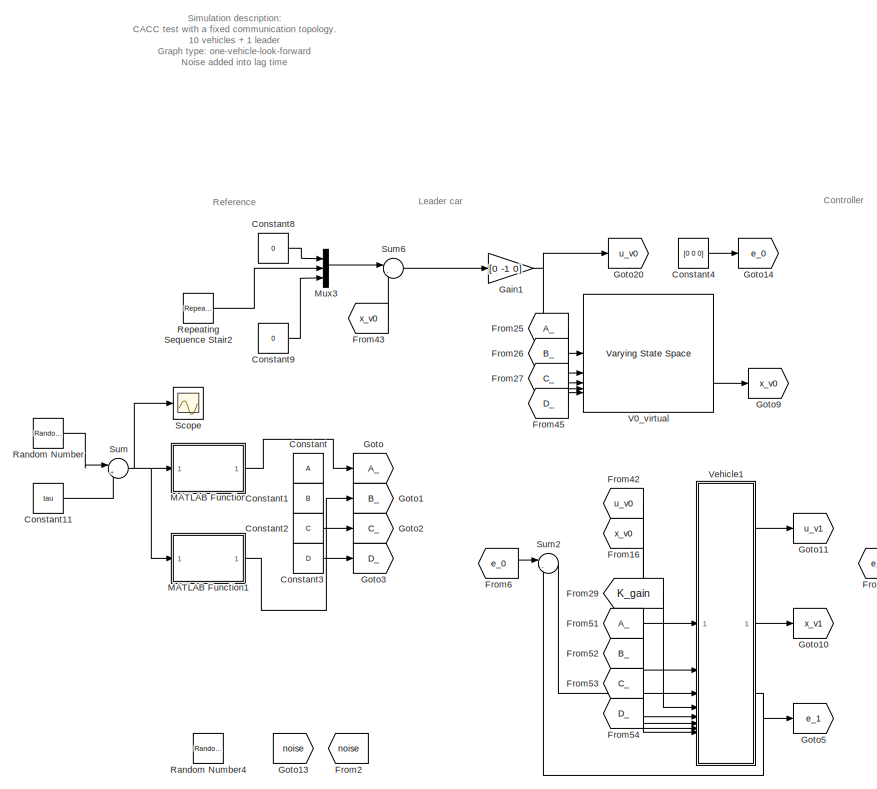
[diagram: root canvas - part 1/3, middle left region]
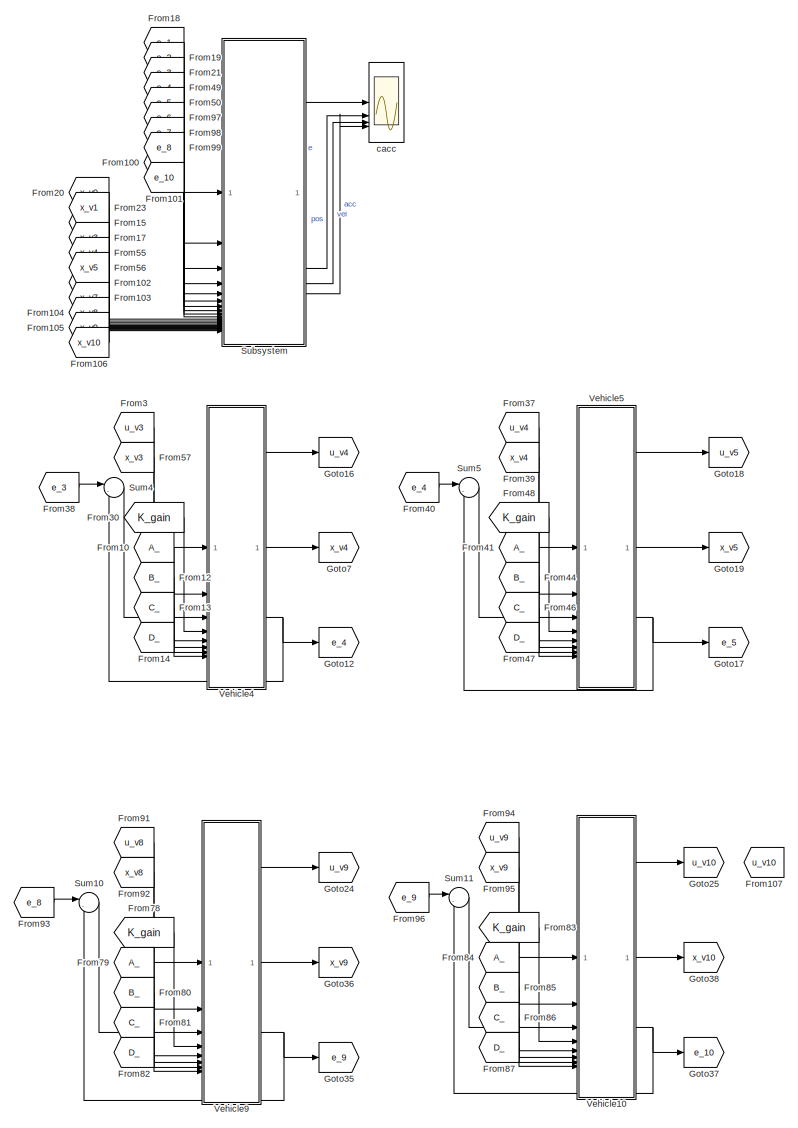
[diagram: root canvas - part 2/3, right side, full height]
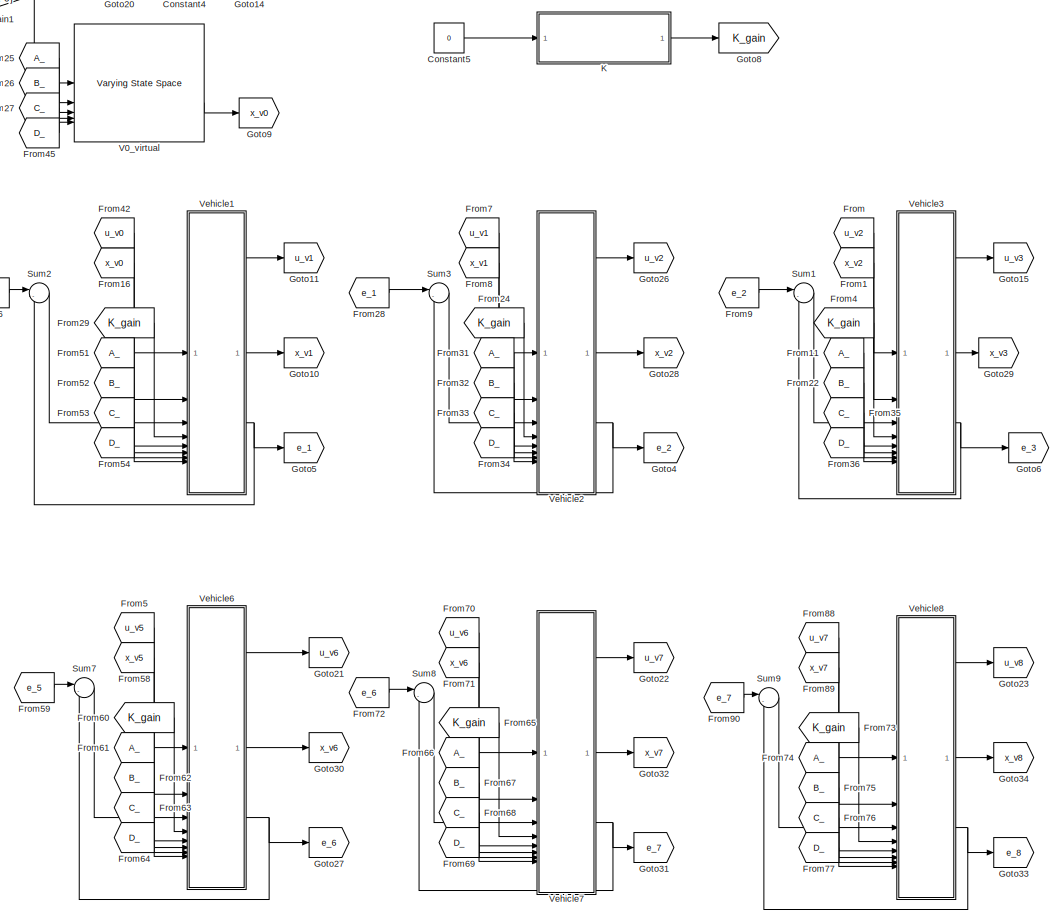
[diagram: root canvas - part 3/3, center side, full height]
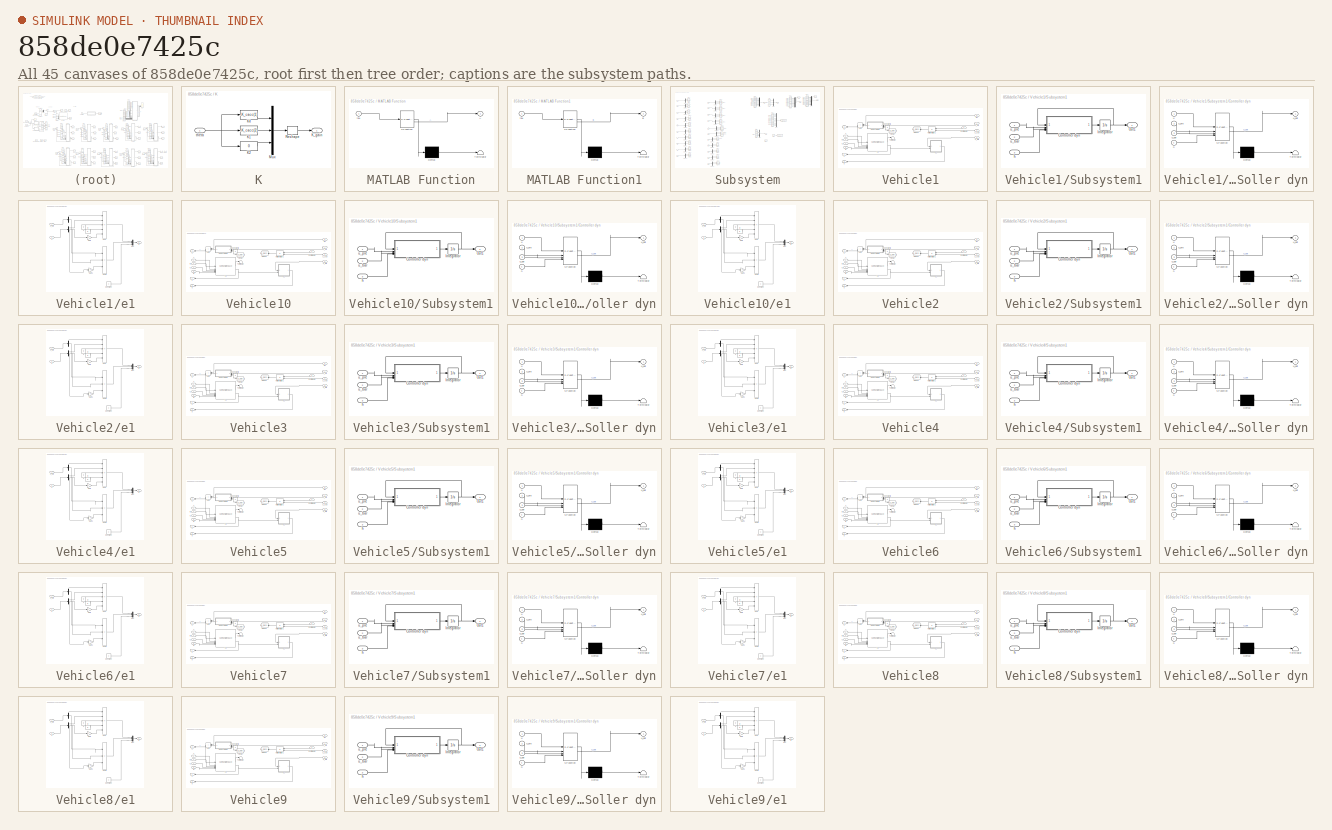
[diagram: thumbnail index - all 45 canvases of the model, root first then tree order]
MODEL slx_858de0e7425c
KIND model
CONFIG AbsTol = auto
CONFIG EnableMultiTasking = off
CONFIG FixedStep = auto
CONFIG MaxStep = auto
CONFIG MinStep = auto
CONFIG RelTol = 1e-3
CONFIG SampleTimeConstraint = Unconstrained
CONFIG SolverName = VariableStepAuto
CONFIG StartTime = 0.0
CONFIG StopTime = 80
BLOCK [Constant] Constant
  Value = A
BLOCK [Constant] Constant1
  Value = B
BLOCK [Constant] Constant11
  Value = tau
BLOCK [Constant] Constant2
  Value = C
BLOCK [Constant] Constant3
  Value = D
BLOCK [Constant] Constant4
  Value = [0 0 0]
BLOCK [Constant] Constant5
  Value = 0
BLOCK [Constant] Constant8
  Value = 0
BLOCK [Constant] Constant9
  Value = 0
BLOCK [From] From
  GotoTag = u_v2
BLOCK [From] From1
  GotoTag = x_v2
BLOCK [From] From10
  GotoTag = A_
BLOCK [From] From100
  GotoTag = e_9
BLOCK [From] From101
  GotoTag = e_10
BLOCK [From] From102
  GotoTag = x_v6
BLOCK [From] From103
  GotoTag = x_v7
BLOCK [From] From104
  GotoTag = x_v8
BLOCK [From] From105
  GotoTag = x_v9
BLOCK [From] From106
  GotoTag = x_v10
BLOCK [From] From107
  GotoTag = u_v10
BLOCK [From] From11
  GotoTag = A_
BLOCK [From] From12
  GotoTag = B_
BLOCK [From] From13
  GotoTag = C_
BLOCK [From] From14
  GotoTag = D_
BLOCK [From] From15
  GotoTag = x_v2
BLOCK [From] From16
  GotoTag = x_v0
BLOCK [From] From17
  GotoTag = x_v3
BLOCK [From] From18
  GotoTag = e_1
BLOCK [From] From19
  GotoTag = e_2
BLOCK [From] From2
  GotoTag = noise
BLOCK [From] From20
  GotoTag = x_v0
BLOCK [From] From21
  GotoTag = e_3
BLOCK [From] From22
  GotoTag = B_
BLOCK [From] From23
  GotoTag = x_v1
BLOCK [From] From24
  GotoTag = K_gain
BLOCK [From] From25
  GotoTag = A_
BLOCK [From] From26
  GotoTag = B_
BLOCK [From] From27
  GotoTag = C_
BLOCK [From] From28
  GotoTag = e_1
BLOCK [From] From29
  GotoTag = K_gain
BLOCK [From] From3
  GotoTag = u_v3
BLOCK [From] From30
  GotoTag = K_gain
BLOCK [From] From31
  GotoTag = A_
BLOCK [From] From32
  GotoTag = B_
BLOCK [From] From33
  GotoTag = C_
BLOCK [From] From34
  GotoTag = D_
BLOCK [From] From35
  GotoTag = C_
BLOCK [From] From36
  GotoTag = D_
BLOCK [From] From37
  GotoTag = u_v4
BLOCK [From] From38
  GotoTag = e_3
BLOCK [From] From39
  GotoTag = x_v4
BLOCK [From] From4
  GotoTag = K_gain
BLOCK [From] From40
  GotoTag = e_4
BLOCK [From] From41
  GotoTag = A_
BLOCK [From] From42
  GotoTag = u_v0
  NameLocation = top
BLOCK [From] From43
  GotoTag = x_v0
BLOCK [From] From44
  GotoTag = B_
BLOCK [From] From45
  GotoTag = D_
BLOCK [From] From46
  GotoTag = C_
BLOCK [From] From47
  GotoTag = D_
BLOCK [From] From48
  GotoTag = K_gain
BLOCK [From] From49
  GotoTag = e_4
BLOCK [From] From5
  GotoTag = u_v5
BLOCK [From] From50
  GotoTag = e_5
BLOCK [From] From51
  GotoTag = A_
BLOCK [From] From52
  GotoTag = B_
BLOCK [From] From53
  GotoTag = C_
BLOCK [From] From54
  GotoTag = D_
BLOCK [From] From55
  GotoTag = x_v4
BLOCK [From] From56
  GotoTag = x_v5
BLOCK [From] From57
  GotoTag = x_v3
BLOCK [From] From58
  GotoTag = x_v5
BLOCK [From] From59
  GotoTag = e_5
BLOCK [From] From6
  GotoTag = e_0
BLOCK [From] From60
  GotoTag = K_gain
BLOCK [From] From61
  GotoTag = A_
BLOCK [From] From62
  GotoTag = B_
BLOCK [From] From63
  GotoTag = C_
BLOCK [From] From64
  GotoTag = D_
BLOCK [From] From65
  GotoTag = K_gain
BLOCK [From] From66
  GotoTag = A_
BLOCK [From] From67
  GotoTag = B_
BLOCK [From] From68
  GotoTag = C_
BLOCK [From] From69
  GotoTag = D_
BLOCK [From] From7
  GotoTag = u_v1
BLOCK [From] From70
  GotoTag = u_v6
BLOCK [From] From71
  GotoTag = x_v6
BLOCK [From] From72
  GotoTag = e_6
BLOCK [From] From73
  GotoTag = K_gain
BLOCK [From] From74
  GotoTag = A_
BLOCK [From] From75
  GotoTag = B_
BLOCK [From] From76
  GotoTag = C_
BLOCK [From] From77
  GotoTag = D_
BLOCK [From] From78
  GotoTag = K_gain
BLOCK [From] From79
  GotoTag = A_
BLOCK [From] From8
  GotoTag = x_v1
BLOCK [From] From80
  GotoTag = B_
BLOCK [From] From81
  GotoTag = C_
BLOCK [From] From82
  GotoTag = D_
BLOCK [From] From83
  GotoTag = K_gain
BLOCK [From] From84
  GotoTag = A_
BLOCK [From] From85
  GotoTag = B_
BLOCK [From] From86
  GotoTag = C_
BLOCK [From] From87
  GotoTag = D_
BLOCK [From] From88
  GotoTag = u_v7
BLOCK [From] From89
  GotoTag = x_v7
BLOCK [From] From9
  GotoTag = e_2
BLOCK [From] From90
  GotoTag = e_7
BLOCK [From] From91
  GotoTag = u_v8
BLOCK [From] From92
  GotoTag = x_v8
BLOCK [From] From93
  GotoTag = e_8
BLOCK [From] From94
  GotoTag = u_v9
BLOCK [From] From95
  GotoTag = x_v9
BLOCK [From] From96
  GotoTag = e_9
BLOCK [From] From97
  GotoTag = e_6
BLOCK [From] From98
  GotoTag = e_7
BLOCK [From] From99
  GotoTag = e_8
BLOCK [Gain] Gain1
  Gain = [0 -1 0]
  Multiplication = Matrix(K*u) (u vector)
BLOCK [Goto] Goto
  GotoTag = A_
BLOCK [Goto] Goto1
  GotoTag = B_
BLOCK [Goto] Goto10
  GotoTag = x_v1
BLOCK [Goto] Goto11
  GotoTag = u_v1
BLOCK [Goto] Goto12
  GotoTag = e_4
  NameLocation = top
BLOCK [Goto] Goto13
  GotoTag = noise
BLOCK [Goto] Goto14
  GotoTag = e_0
  NameLocation = top
BLOCK [Goto] Goto15
  GotoTag = u_v3
BLOCK [Goto] Goto16
  GotoTag = u_v4
BLOCK [Goto] Goto17
  GotoTag = e_5
  NameLocation = top
BLOCK [Goto] Goto18
  GotoTag = u_v5
BLOCK [Goto] Goto19
  GotoTag = x_v5
BLOCK [Goto] Goto2
  GotoTag = C_
BLOCK [Goto] Goto20
  GotoTag = u_v0
BLOCK [Goto] Goto21
  GotoTag = u_v6
BLOCK [Goto] Goto22
  GotoTag = u_v7
BLOCK [Goto] Goto23
  GotoTag = u_v8
BLOCK [Goto] Goto24
  GotoTag = u_v9
BLOCK [Goto] Goto25
  GotoTag = u_v10
BLOCK [Goto] Goto26
  GotoTag = u_v2
BLOCK [Goto] Goto27
  GotoTag = e_6
  NameLocation = top
BLOCK [Goto] Goto28
  GotoTag = x_v2
BLOCK [Goto] Goto29
  GotoTag = x_v3
BLOCK [Goto] Goto3
  GotoTag = D_
BLOCK [Goto] Goto30
  GotoTag = x_v6
BLOCK [Goto] Goto31
  GotoTag = e_7
  NameLocation = top
BLOCK [Goto] Goto32
  GotoTag = x_v7
BLOCK [Goto] Goto33
  GotoTag = e_8
  NameLocation = top
BLOCK [Goto] Goto34
  GotoTag = x_v8
BLOCK [Goto] Goto35
  GotoTag = e_9
  NameLocation = top
BLOCK [Goto] Goto36
  GotoTag = x_v9
BLOCK [Goto] Goto37
  GotoTag = e_10
  NameLocation = top
BLOCK [Goto] Goto38
  GotoTag = x_v10
BLOCK [Goto] Goto4
  GotoTag = e_2
  NameLocation = top
BLOCK [Goto] Goto5
  GotoTag = e_1
  NameLocation = top
BLOCK [Goto] Goto6
  GotoTag = e_3
  NameLocation = top
BLOCK [Goto] Goto7
  GotoTag = x_v4
BLOCK [Goto] Goto8
  GotoTag = K_gain
BLOCK [Goto] Goto9
  GotoTag = x_v0
BLOCK [SubSystem] K
BLOCK [Fcn] K/K1
  Expr = -K_cacc(2)
BLOCK [Fcn] K/K2
  Expr = 0
BLOCK [Fcn] K/K4
  Expr = -K_cacc(1)
BLOCK [Outport] K/K_gain
BLOCK [Mux] K/Mux
  DisplayOption = bar
  Inputs = 3
BLOCK [Reshape] K/Reshape
  OutputDimensionality = Customize
  OutputDimensions = [1,3]
BLOCK [Inport] K/theta
BLOCK [SubSystem] MATLAB Function
  ErrorFcn = Stateflow.Translate.translate
  LibrarySourceBlock = simulink/User-Defined\nFunctions/MATLAB Function
  PermitHierarchicalResolution = ExplicitOnly
  SFBlockType = MATLAB Function
  TreatAsAtomicUnit = on
BLOCK [Demux] MATLAB Function/ Demux 
  Outputs = 1
BLOCK [S-Function] MATLAB Function/ SFunction 
  EnableBusSupport = on
  FunctionName = sf_sfun
  PortCounts = [1 2]
  SFcnIsStateOwnerBlock = off
  SFunctionDeploymentMode = off
  Tag = Stateflow S-Function 2
BLOCK [Terminator] MATLAB Function/ Terminator 
BLOCK [Outport] MATLAB Function/A
BLOCK [Inport] MATLAB Function/tau
BLOCK [SubSystem] MATLAB Function1
  ErrorFcn = Stateflow.Translate.translate
  LibrarySourceBlock = simulink/User-Defined\nFunctions/MATLAB Function
  PermitHierarchicalResolution = ExplicitOnly
  SFBlockType = MATLAB Function
  TreatAsAtomicUnit = on
BLOCK [Demux] MATLAB Function1/ Demux 
  Outputs = 1
BLOCK [S-Function] MATLAB Function1/ SFunction 
  EnableBusSupport = on
  FunctionName = sf_sfun
  PortCounts = [1 2]
  SFcnIsStateOwnerBlock = off
  SFunctionDeploymentMode = off
  Tag = Stateflow S-Function 4
BLOCK [Terminator] MATLAB Function1/ Terminator 
BLOCK [Outport] MATLAB Function1/B
BLOCK [Inport] MATLAB Function1/tau
BLOCK [Mux] Mux3
  DisplayOption = bar
  Inputs = 3
BLOCK [RandomNumber] Random Number
  SampleTime = 0.1
  Variance = 0.0001
BLOCK [RandomNumber] Random Number4
  SampleTime = 0.1
  Variance = 0.1
BLOCK [Reference] Repeating Sequence Stair2  REF=simulink/Sources/Repeating
Sequence
Stair
  SourceBlock = simulink/Sources/Repeating\nSequence\nStair
  SourceType = Repeating Sequence Stair
BLOCK [Scope] Scope
  Floating = off
  NumInputPorts = 1
  ScopeSpecificationString = Simulink.scopes.TimeScopeBlockCfg('CurrentConfiguration', extmgr.ConfigurationSet(extmgr.Configuration('Core','General UI',true),extmgr.Configuration('Core','Source UI',true),extmgr.Configuration('Sources','WiredSimulink',true,'DataLoggingVariableName','ScopeData1'),extmgr.Configuration('Visuals','Time Domain',true,'SerializedDisplays',{struct('MinYLimReal','0.06367','MaxYLimReal','0.13967','YLabe...<+1389ch>
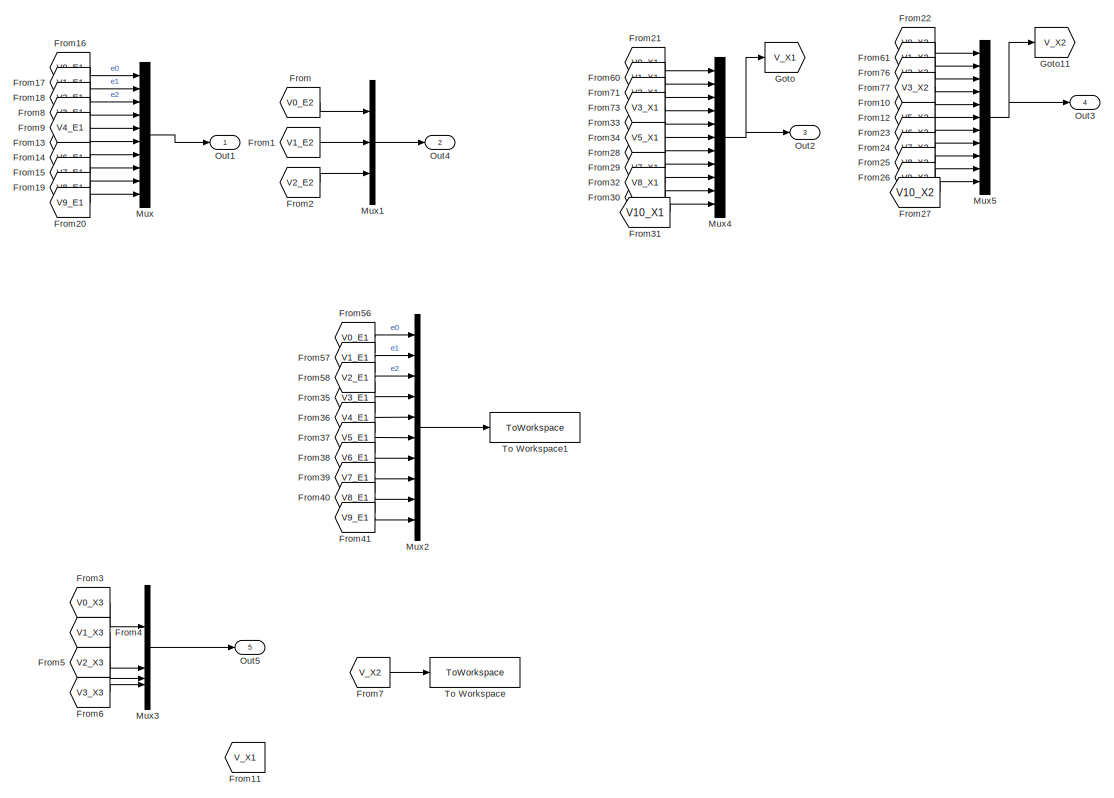
[diagram: Subsystem - part 1/2, middle right region]
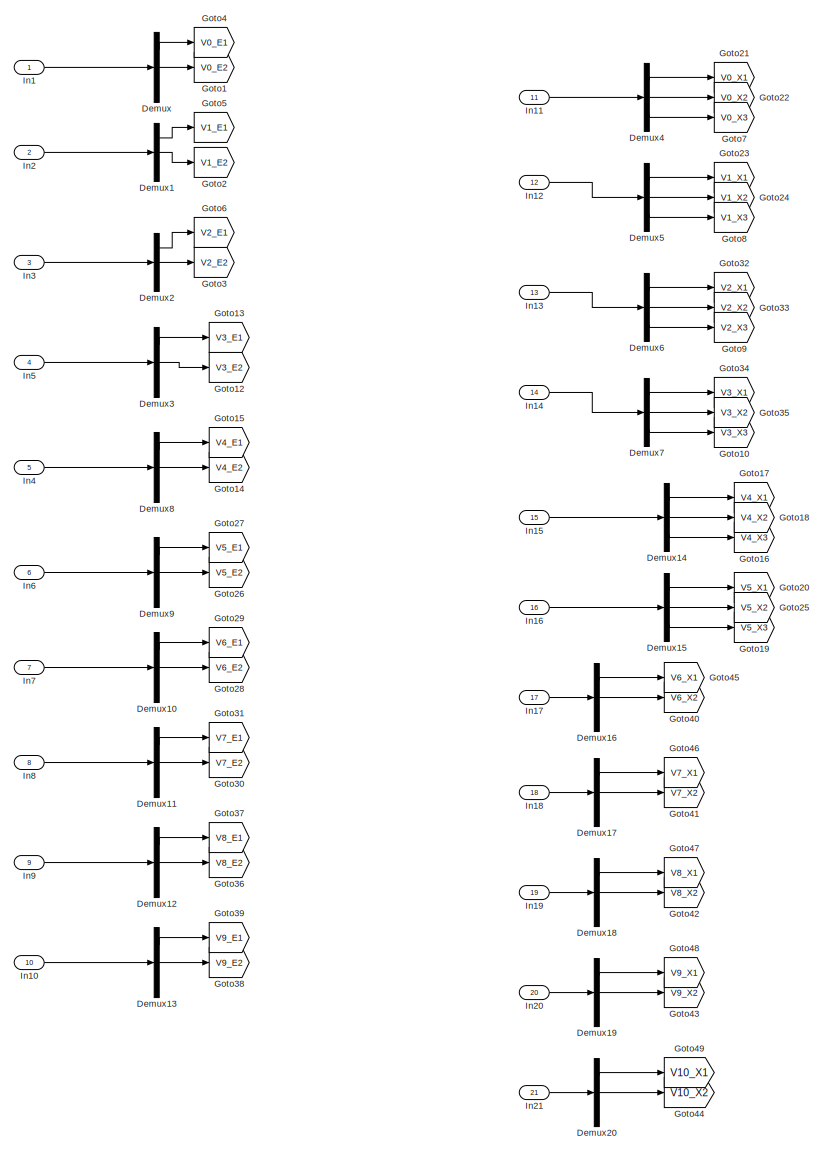
[diagram: Subsystem - part 2/2, left side, full height]
BLOCK [SubSystem] Subsystem
BLOCK [Demux] Subsystem/Demux
  Outputs = 3
BLOCK [Demux] Subsystem/Demux1
  Outputs = 3
BLOCK [Demux] Subsystem/Demux10
  Outputs = 3
BLOCK [Demux] Subsystem/Demux11
  Outputs = 3
BLOCK [Demux] Subsystem/Demux12
  Outputs = 3
BLOCK [Demux] Subsystem/Demux13
  Outputs = 3
BLOCK [Demux] Subsystem/Demux14
  Outputs = 3
BLOCK [Demux] Subsystem/Demux15
  Outputs = 3
BLOCK [Demux] Subsystem/Demux16
  Outputs = 3
BLOCK [Demux] Subsystem/Demux17
  Outputs = 3
BLOCK [Demux] Subsystem/Demux18
  Outputs = 3
BLOCK [Demux] Subsystem/Demux19
  Outputs = 3
BLOCK [Demux] Subsystem/Demux2
  Outputs = 3
BLOCK [Demux] Subsystem/Demux20
  Outputs = 3
BLOCK [Demux] Subsystem/Demux3
  Outputs = 3
BLOCK [Demux] Subsystem/Demux4
  Outputs = 3
BLOCK [Demux] Subsystem/Demux5
  Outputs = 3
BLOCK [Demux] Subsystem/Demux6
  Outputs = 3
BLOCK [Demux] Subsystem/Demux7
  Outputs = 3
BLOCK [Demux] Subsystem/Demux8
  Outputs = 3
BLOCK [Demux] Subsystem/Demux9
  Outputs = 3
BLOCK [From] Subsystem/From
  GotoTag = V0_E2
BLOCK [From] Subsystem/From1
  GotoTag = V1_E2
BLOCK [From] Subsystem/From10
  GotoTag = V4_X2
BLOCK [From] Subsystem/From11
  GotoTag = V_X1
BLOCK [From] Subsystem/From12
  GotoTag = V5_X2
BLOCK [From] Subsystem/From13
  GotoTag = V5_E1
BLOCK [From] Subsystem/From14
  GotoTag = V6_E1
BLOCK [From] Subsystem/From15
  GotoTag = V7_E1
BLOCK [From] Subsystem/From16
  GotoTag = V0_E1
BLOCK [From] Subsystem/From17
  GotoTag = V1_E1
BLOCK [From] Subsystem/From18
  GotoTag = V2_E1
BLOCK [From] Subsystem/From19
  GotoTag = V8_E1
BLOCK [From] Subsystem/From2
  GotoTag = V2_E2
BLOCK [From] Subsystem/From20
  GotoTag = V9_E1
BLOCK [From] Subsystem/From21
  GotoTag = V0_X1
BLOCK [From] Subsystem/From22
  GotoTag = V0_X2
BLOCK [From] Subsystem/From23
  GotoTag = V6_X2
BLOCK [From] Subsystem/From24
  GotoTag = V7_X2
BLOCK [From] Subsystem/From25
  GotoTag = V8_X2
BLOCK [From] Subsystem/From26
  GotoTag = V9_X2
BLOCK [From] Subsystem/From27
  GotoTag = V10_X2
BLOCK [From] Subsystem/From28
  GotoTag = V6_X1
BLOCK [From] Subsystem/From29
  GotoTag = V7_X1
BLOCK [From] Subsystem/From3
  GotoTag = V0_X3
BLOCK [From] Subsystem/From30
  GotoTag = V9_X1
BLOCK [From] Subsystem/From31
  GotoTag = V10_X1
BLOCK [From] Subsystem/From32
  GotoTag = V8_X1
BLOCK [From] Subsystem/From33
  GotoTag = V4_X1
BLOCK [From] Subsystem/From34
  GotoTag = V5_X1
BLOCK [From] Subsystem/From35
  GotoTag = V3_E1
BLOCK [From] Subsystem/From36
  GotoTag = V4_E1
BLOCK [From] Subsystem/From37
  GotoTag = V5_E1
BLOCK [From] Subsystem/From38
  GotoTag = V6_E1
BLOCK [From] Subsystem/From39
  GotoTag = V7_E1
BLOCK [From] Subsystem/From4
  GotoTag = V1_X3
BLOCK [From] Subsystem/From40
  GotoTag = V8_E1
BLOCK [From] Subsystem/From41
  GotoTag = V9_E1
BLOCK [From] Subsystem/From5
  GotoTag = V2_X3
BLOCK [From] Subsystem/From56
  GotoTag = V0_E1
BLOCK [From] Subsystem/From57
  GotoTag = V1_E1
BLOCK [From] Subsystem/From58
  GotoTag = V2_E1
BLOCK [From] Subsystem/From6
  GotoTag = V3_X3
BLOCK [From] Subsystem/From60
  GotoTag = V1_X1
BLOCK [From] Subsystem/From61
  GotoTag = V1_X2
BLOCK [From] Subsystem/From7
  GotoTag = V_X2
BLOCK [From] Subsystem/From71
  GotoTag = V2_X1
BLOCK [From] Subsystem/From73
  GotoTag = V3_X1
BLOCK [From] Subsystem/From76
  GotoTag = V2_X2
BLOCK [From] Subsystem/From77
  GotoTag = V3_X2
BLOCK [From] Subsystem/From8
  GotoTag = V3_E1
BLOCK [From] Subsystem/From9
  GotoTag = V4_E1
BLOCK [Goto] Subsystem/Goto
  GotoTag = V_X1
BLOCK [Goto] Subsystem/Goto1
  GotoTag = V0_E2
BLOCK [Goto] Subsystem/Goto10
  GotoTag = V3_X3
BLOCK [Goto] Subsystem/Goto11
  GotoTag = V_X2
BLOCK [Goto] Subsystem/Goto12
  GotoTag = V3_E2
BLOCK [Goto] Subsystem/Goto13
  GotoTag = V3_E1
BLOCK [Goto] Subsystem/Goto14
  GotoTag = V4_E2
BLOCK [Goto] Subsystem/Goto15
  GotoTag = V4_E1
BLOCK [Goto] Subsystem/Goto16
  GotoTag = V4_X3
BLOCK [Goto] Subsystem/Goto17
  GotoTag = V4_X1
BLOCK [Goto] Subsystem/Goto18
  GotoTag = V4_X2
BLOCK [Goto] Subsystem/Goto19
  GotoTag = V5_X3
BLOCK [Goto] Subsystem/Goto2
  GotoTag = V1_E2
BLOCK [Goto] Subsystem/Goto20
  GotoTag = V5_X1
BLOCK [Goto] Subsystem/Goto21
  GotoTag = V0_X1
BLOCK [Goto] Subsystem/Goto22
  GotoTag = V0_X2
BLOCK [Goto] Subsystem/Goto23
  GotoTag = V1_X1
BLOCK [Goto] Subsystem/Goto24
  GotoTag = V1_X2
BLOCK [Goto] Subsystem/Goto25
  GotoTag = V5_X2
BLOCK [Goto] Subsystem/Goto26
  GotoTag = V5_E2
BLOCK [Goto] Subsystem/Goto27
  GotoTag = V5_E1
BLOCK [Goto] Subsystem/Goto28
  GotoTag = V6_E2
BLOCK [Goto] Subsystem/Goto29
  GotoTag = V6_E1
BLOCK [Goto] Subsystem/Goto3
  GotoTag = V2_E2
BLOCK [Goto] Subsystem/Goto30
  GotoTag = V7_E2
BLOCK [Goto] Subsystem/Goto31
  GotoTag = V7_E1
BLOCK [Goto] Subsystem/Goto32
  GotoTag = V2_X1
BLOCK [Goto] Subsystem/Goto33
  GotoTag = V2_X2
BLOCK [Goto] Subsystem/Goto34
  GotoTag = V3_X1
BLOCK [Goto] Subsystem/Goto35
  GotoTag = V3_X2
BLOCK [Goto] Subsystem/Goto36
  GotoTag = V8_E2
BLOCK [Goto] Subsystem/Goto37
  GotoTag = V8_E1
BLOCK [Goto] Subsystem/Goto38
  GotoTag = V9_E2
BLOCK [Goto] Subsystem/Goto39
  GotoTag = V9_E1
BLOCK [Goto] Subsystem/Goto4
  GotoTag = V0_E1
BLOCK [Goto] Subsystem/Goto40
  GotoTag = V6_X2
BLOCK [Goto] Subsystem/Goto41
  GotoTag = V7_X2
BLOCK [Goto] Subsystem/Goto42
  GotoTag = V8_X2
BLOCK [Goto] Subsystem/Goto43
  GotoTag = V9_X2
BLOCK [Goto] Subsystem/Goto44
  GotoTag = V10_X2
BLOCK [Goto] Subsystem/Goto45
  GotoTag = V6_X1
BLOCK [Goto] Subsystem/Goto46
  GotoTag = V7_X1
BLOCK [Goto] Subsystem/Goto47
  GotoTag = V8_X1
BLOCK [Goto] Subsystem/Goto48
  GotoTag = V9_X1
BLOCK [Goto] Subsystem/Goto49
  GotoTag = V10_X1
BLOCK [Goto] Subsystem/Goto5
  GotoTag = V1_E1
BLOCK [Goto] Subsystem/Goto6
  GotoTag = V2_E1
BLOCK [Goto] Subsystem/Goto7
  GotoTag = V0_X3
BLOCK [Goto] Subsystem/Goto8
  GotoTag = V1_X3
BLOCK [Goto] Subsystem/Goto9
  GotoTag = V2_X3
BLOCK [Inport] Subsystem/In1
BLOCK [Inport] Subsystem/In10
  Port = 10
BLOCK [Inport] Subsystem/In11
  Port = 11
BLOCK [Inport] Subsystem/In12
  Port = 12
BLOCK [Inport] Subsystem/In13
  Port = 13
BLOCK [Inport] Subsystem/In14
  Port = 14
BLOCK [Inport] Subsystem/In15
  Port = 15
BLOCK [Inport] Subsystem/In16
  Port = 16
BLOCK [Inport] Subsystem/In17
  Port = 17
BLOCK [Inport] Subsystem/In18
  Port = 18
BLOCK [Inport] Subsystem/In19
  Port = 19
BLOCK [Inport] Subsystem/In2
  Port = 2
BLOCK [Inport] Subsystem/In20
  Port = 20
BLOCK [Inport] Subsystem/In21
  Port = 21
BLOCK [Inport] Subsystem/In3
  Port = 3
BLOCK [Inport] Subsystem/In4
  Port = 5
BLOCK [Inport] Subsystem/In5
  Port = 4
BLOCK [Inport] Subsystem/In6
  Port = 6
BLOCK [Inport] Subsystem/In7
  Port = 7
BLOCK [Inport] Subsystem/In8
  Port = 8
BLOCK [Inport] Subsystem/In9
  Port = 9
BLOCK [Mux] Subsystem/Mux
  DisplayOption = bar
  Inputs = 10
BLOCK [Mux] Subsystem/Mux1
  DisplayOption = bar
  Inputs = 3
BLOCK [Mux] Subsystem/Mux2
  DisplayOption = bar
  Inputs = 10
BLOCK [Mux] Subsystem/Mux3
  DisplayOption = bar
BLOCK [Mux] Subsystem/Mux4
  DisplayOption = bar
  Inputs = 11
BLOCK [Mux] Subsystem/Mux5
  DisplayOption = bar
  Inputs = 11
BLOCK [Outport] Subsystem/Out1
BLOCK [Outport] Subsystem/Out2
  Port = 3
BLOCK [Outport] Subsystem/Out3
  Port = 4
BLOCK [Outport] Subsystem/Out4
  Port = 2
BLOCK [Outport] Subsystem/Out5
  Port = 5
BLOCK [ToWorkspace] Subsystem/To Workspace
  FixptAsFi = on
  MaxDataPoints = inf
  SampleTime = -1
  SaveFormat = Timeseries
  VariableName = velocity
BLOCK [ToWorkspace] Subsystem/To Workspace1
  FixptAsFi = on
  MaxDataPoints = inf
  SampleTime = -1
  SaveFormat = Timeseries
  VariableName = error
BLOCK [Sum] Sum
  Inputs = |++
BLOCK [Sum] Sum1
  Inputs = |-+
BLOCK [Sum] Sum10
  Inputs = |-+
BLOCK [Sum] Sum11
  Inputs = |-+
BLOCK [Sum] Sum2
  Inputs = |-+
BLOCK [Sum] Sum3
  Inputs = |-+
BLOCK [Sum] Sum4
  Inputs = |-+
BLOCK [Sum] Sum5
  Inputs = |-+
BLOCK [Sum] Sum6
  Inputs = |-+
BLOCK [Sum] Sum7
  Inputs = |-+
BLOCK [Sum] Sum8
  Inputs = |-+
BLOCK [Sum] Sum9
  Inputs = |-+
BLOCK [Reference] V0_virtual  REF=cstblocks/Linear Parameter Varying/Varying State Space
  SourceBlock = cstblocks/Linear Parameter Varying/Varying State Space
  SourceType = Varying State Space
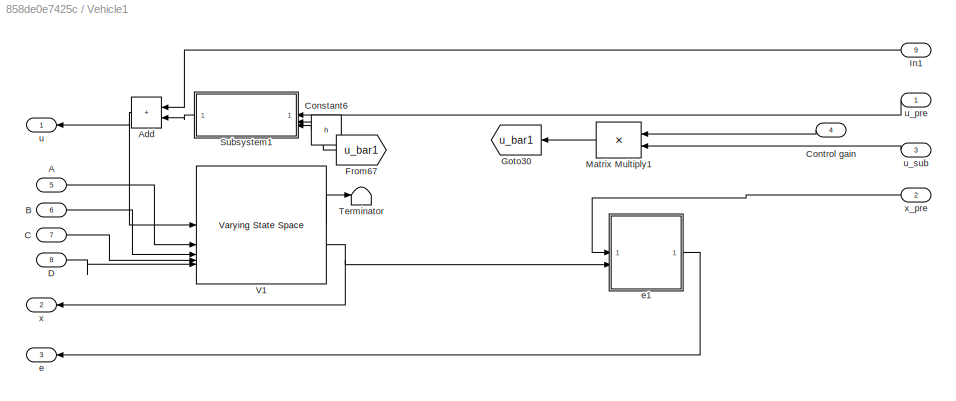
BLOCK [SubSystem] Vehicle1
BLOCK [Inport] Vehicle1/A
  Port = 5
BLOCK [Sum] Vehicle1/Add
  IconShape = rectangular
  NameLocation = top
BLOCK [Inport] Vehicle1/B
  Port = 6
BLOCK [Inport] Vehicle1/C
  Port = 7
BLOCK [Constant] Vehicle1/Constant6
  NameLocation = top
  Value = h
BLOCK [Inport] Vehicle1/Control gain
  Port = 4
BLOCK [Inport] Vehicle1/D
  Port = 8
BLOCK [From] Vehicle1/From67
  GotoTag = u_bar1
BLOCK [Goto] Vehicle1/Goto30
  GotoTag = u_bar1
  NameLocation = top
BLOCK [Inport] Vehicle1/In1
  Port = 9
BLOCK [Product] Vehicle1/Matrix Multiply1
  Multiplication = Matrix(*)
  NameLocation = top
BLOCK [SubSystem] Vehicle1/Subsystem1
  NameLocation = top
BLOCK [SubSystem] Vehicle1/Subsystem1/Controller dyn
  ErrorFcn = Stateflow.Translate.translate
  LibrarySourceBlock = simulink/User-Defined\nFunctions/MATLAB Function
  PermitHierarchicalResolution = ExplicitOnly
  SFBlockType = MATLAB Function
  TreatAsAtomicUnit = on
BLOCK [Demux] Vehicle1/Subsystem1/Controller dyn/ Demux 
  Outputs = 1
BLOCK [S-Function] Vehicle1/Subsystem1/Controller dyn/ SFunction 
  EnableBusSupport = on
  FunctionName = sf_sfun
  PortCounts = [4 2]
  SFcnIsStateOwnerBlock = off
  SFunctionDeploymentMode = off
  Tag = Stateflow S-Function 1
BLOCK [Terminator] Vehicle1/Subsystem1/Controller dyn/ Terminator 
BLOCK [Inport] Vehicle1/Subsystem1/Controller dyn/h
  Port = 4
BLOCK [Inport] Vehicle1/Subsystem1/Controller dyn/u
BLOCK [Inport] Vehicle1/Subsystem1/Controller dyn/u_bar
  Port = 3
BLOCK [Outport] Vehicle1/Subsystem1/Controller dyn/u_dot
BLOCK [Inport] Vehicle1/Subsystem1/Controller dyn/u_pre
  Port = 2
BLOCK [Integrator] Vehicle1/Subsystem1/Integrator
BLOCK [Outport] Vehicle1/Subsystem1/Out1
BLOCK [Inport] Vehicle1/Subsystem1/h
  Port = 3
BLOCK [Inport] Vehicle1/Subsystem1/u_bar
  Port = 2
BLOCK [Inport] Vehicle1/Subsystem1/u_pre
BLOCK [Terminator] Vehicle1/Terminator
BLOCK [Reference] Vehicle1/V1  REF=cstblocks/Linear Parameter Varying/Varying State Space
  SourceBlock = cstblocks/Linear Parameter Varying/Varying State Space
  SourceType = Varying State Space
BLOCK [Outport] Vehicle1/e
  Port = 3
BLOCK [SubSystem] Vehicle1/e1
BLOCK [Demux] Vehicle1/e1/ 
  Outputs = 3
BLOCK [Demux] Vehicle1/e1/   
  Outputs = 3
BLOCK [Constant] Vehicle1/e1/Constant
  Value = 0
BLOCK [Gain] Vehicle1/e1/Gain
  Gain = h
BLOCK [Gain] Vehicle1/e1/Gain1
  Gain = h
BLOCK [Mux] Vehicle1/e1/Mux
  DisplayOption = bar
  Inputs = 3
BLOCK [Sum] Vehicle1/e1/Sum
  IconShape = rectangular
  Inputs = |+----
BLOCK [Sum] Vehicle1/e1/Sum1
  IconShape = rectangular
  Inputs = |+--
BLOCK [Outport] Vehicle1/e1/e
BLOCK [Constant] Vehicle1/e1/lv
  Value = lv
BLOCK [Constant] Vehicle1/e1/rv
  Value = rv
BLOCK [Inport] Vehicle1/e1/x
  Port = 2
BLOCK [Inport] Vehicle1/e1/x_pre
BLOCK [Outport] Vehicle1/u
BLOCK [Inport] Vehicle1/u_pre
BLOCK [Inport] Vehicle1/u_sub
  Port = 3
BLOCK [Outport] Vehicle1/x
  Port = 2
BLOCK [Inport] Vehicle1/x_pre
  Port = 2
BLOCK [SubSystem] Vehicle10
BLOCK [Inport] Vehicle10/A
  Port = 5
BLOCK [Sum] Vehicle10/Add
  IconShape = rectangular
  NameLocation = top
BLOCK [Inport] Vehicle10/B
  Port = 6
BLOCK [Inport] Vehicle10/C
  Port = 7
BLOCK [Constant] Vehicle10/Constant6
  NameLocation = top
  Value = h
BLOCK [Inport] Vehicle10/Control gain
  Port = 4
BLOCK [Inport] Vehicle10/D
  Port = 8
BLOCK [From] Vehicle10/From67
  GotoTag = u_bar1
BLOCK [Goto] Vehicle10/Goto30
  GotoTag = u_bar1
  NameLocation = top
BLOCK [Inport] Vehicle10/In1
  Port = 9
BLOCK [Product] Vehicle10/Matrix Multiply1
  Multiplication = Matrix(*)
  NameLocation = top
BLOCK [SubSystem] Vehicle10/Subsystem1
  NameLocation = top
BLOCK [SubSystem] Vehicle10/Subsystem1/Controller dyn
  ErrorFcn = Stateflow.Translate.translate
  LibrarySourceBlock = simulink/User-Defined\nFunctions/MATLAB Function
  PermitHierarchicalResolution = ExplicitOnly
  SFBlockType = MATLAB Function
  TreatAsAtomicUnit = on
BLOCK [Demux] Vehicle10/Subsystem1/Controller dyn/ Demux 
  Outputs = 1
BLOCK [S-Function] Vehicle10/Subsystem1/Controller dyn/ SFunction 
  EnableBusSupport = on
  FunctionName = sf_sfun
  PortCounts = [4 2]
  SFcnIsStateOwnerBlock = off
  SFunctionDeploymentMode = off
  Tag = Stateflow S-Function 12
BLOCK [Terminator] Vehicle10/Subsystem1/Controller dyn/ Terminator 
BLOCK [Inport] Vehicle10/Subsystem1/Controller dyn/h
  Port = 4
BLOCK [Inport] Vehicle10/Subsystem1/Controller dyn/u
BLOCK [Inport] Vehicle10/Subsystem1/Controller dyn/u_bar
  Port = 3
BLOCK [Outport] Vehicle10/Subsystem1/Controller dyn/u_dot
BLOCK [Inport] Vehicle10/Subsystem1/Controller dyn/u_pre
  Port = 2
BLOCK [Integrator] Vehicle10/Subsystem1/Integrator
BLOCK [Outport] Vehicle10/Subsystem1/Out1
BLOCK [Inport] Vehicle10/Subsystem1/h
  Port = 3
BLOCK [Inport] Vehicle10/Subsystem1/u_bar
  Port = 2
BLOCK [Inport] Vehicle10/Subsystem1/u_pre
BLOCK [Terminator] Vehicle10/Terminator
BLOCK [Reference] Vehicle10/V1  REF=cstblocks/Linear Parameter Varying/Varying State Space
  SourceBlock = cstblocks/Linear Parameter Varying/Varying State Space
  SourceType = Varying State Space
BLOCK [Outport] Vehicle10/e
  Port = 3
BLOCK [SubSystem] Vehicle10/e1
BLOCK [Demux] Vehicle10/e1/ 
  Outputs = 3
BLOCK [Demux] Vehicle10/e1/   
  Outputs = 3
BLOCK [Constant] Vehicle10/e1/Constant
  Value = 0
BLOCK [Gain] Vehicle10/e1/Gain
  Gain = h
BLOCK [Gain] Vehicle10/e1/Gain1
  Gain = h
BLOCK [Mux] Vehicle10/e1/Mux
  DisplayOption = bar
  Inputs = 3
BLOCK [Sum] Vehicle10/e1/Sum
  IconShape = rectangular
  Inputs = |+----
BLOCK [Sum] Vehicle10/e1/Sum1
  IconShape = rectangular
  Inputs = |+--
BLOCK [Outport] Vehicle10/e1/e
BLOCK [Constant] Vehicle10/e1/lv
  Value = lv
BLOCK [Constant] Vehicle10/e1/rv
  Value = rv
BLOCK [Inport] Vehicle10/e1/x
  Port = 2
BLOCK [Inport] Vehicle10/e1/x_pre
BLOCK [Outport] Vehicle10/u
BLOCK [Inport] Vehicle10/u_pre
BLOCK [Inport] Vehicle10/u_sub
  Port = 3
BLOCK [Outport] Vehicle10/x
  Port = 2
BLOCK [Inport] Vehicle10/x_pre
  Port = 2
BLOCK [SubSystem] Vehicle2
BLOCK [Inport] Vehicle2/A
  Port = 5
BLOCK [Sum] Vehicle2/Add
  IconShape = rectangular
  NameLocation = top
BLOCK [Inport] Vehicle2/B
  Port = 6
BLOCK [Inport] Vehicle2/C
  Port = 7
BLOCK [Constant] Vehicle2/Constant6
  NameLocation = top
  Value = h
BLOCK [Inport] Vehicle2/Control gain
  Port = 4
BLOCK [Inport] Vehicle2/D
  Port = 8
BLOCK [From] Vehicle2/From67
  GotoTag = u_bar1
BLOCK [Goto] Vehicle2/Goto30
  GotoTag = u_bar1
  NameLocation = top
BLOCK [Inport] Vehicle2/In1
  Port = 9
BLOCK [Product] Vehicle2/Matrix Multiply1
  Multiplication = Matrix(*)
  NameLocation = top
BLOCK [SubSystem] Vehicle2/Subsystem1
  NameLocation = top
BLOCK [SubSystem] Vehicle2/Subsystem1/Controller dyn
  ErrorFcn = Stateflow.Translate.translate
  LibrarySourceBlock = simulink/User-Defined\nFunctions/MATLAB Function
  PermitHierarchicalResolution = ExplicitOnly
  SFBlockType = MATLAB Function
  TreatAsAtomicUnit = on
BLOCK [Demux] Vehicle2/Subsystem1/Controller dyn/ Demux 
  Outputs = 1
BLOCK [S-Function] Vehicle2/Subsystem1/Controller dyn/ SFunction 
  EnableBusSupport = on
  FunctionName = sf_sfun
  PortCounts = [4 2]
  SFcnIsStateOwnerBlock = off
  SFunctionDeploymentMode = off
  Tag = Stateflow S-Function 6
BLOCK [Terminator] Vehicle2/Subsystem1/Controller dyn/ Terminator 
BLOCK [Inport] Vehicle2/Subsystem1/Controller dyn/h
  Port = 4
BLOCK [Inport] Vehicle2/Subsystem1/Controller dyn/u
BLOCK [Inport] Vehicle2/Subsystem1/Controller dyn/u_bar
  Port = 3
BLOCK [Outport] Vehicle2/Subsystem1/Controller dyn/u_dot
BLOCK [Inport] Vehicle2/Subsystem1/Controller dyn/u_pre
  Port = 2
BLOCK [Integrator] Vehicle2/Subsystem1/Integrator
BLOCK [Outport] Vehicle2/Subsystem1/Out1
BLOCK [Inport] Vehicle2/Subsystem1/h
  Port = 3
BLOCK [Inport] Vehicle2/Subsystem1/u_bar
  Port = 2
BLOCK [Inport] Vehicle2/Subsystem1/u_pre
BLOCK [Terminator] Vehicle2/Terminator
BLOCK [Reference] Vehicle2/V1  REF=cstblocks/Linear Parameter Varying/Varying State Space
  SourceBlock = cstblocks/Linear Parameter Varying/Varying State Space
  SourceType = Varying State Space
BLOCK [Outport] Vehicle2/e
  Port = 3
BLOCK [SubSystem] Vehicle2/e1
BLOCK [Demux] Vehicle2/e1/ 
  Outputs = 3
BLOCK [Demux] Vehicle2/e1/   
  Outputs = 3
BLOCK [Constant] Vehicle2/e1/Constant
  Value = 0
BLOCK [Gain] Vehicle2/e1/Gain
  Gain = h
BLOCK [Gain] Vehicle2/e1/Gain1
  Gain = h
BLOCK [Mux] Vehicle2/e1/Mux
  DisplayOption = bar
  Inputs = 3
BLOCK [Sum] Vehicle2/e1/Sum
  IconShape = rectangular
  Inputs = |+----
BLOCK [Sum] Vehicle2/e1/Sum1
  IconShape = rectangular
  Inputs = |+--
BLOCK [Outport] Vehicle2/e1/e
BLOCK [Constant] Vehicle2/e1/lv
  Value = lv
BLOCK [Constant] Vehicle2/e1/rv
  Value = rv
BLOCK [Inport] Vehicle2/e1/x
  Port = 2
BLOCK [Inport] Vehicle2/e1/x_pre
BLOCK [Outport] Vehicle2/u
BLOCK [Inport] Vehicle2/u_pre
BLOCK [Inport] Vehicle2/u_sub
  Port = 3
BLOCK [Outport] Vehicle2/x
  Port = 2
BLOCK [Inport] Vehicle2/x_pre
  Port = 2
BLOCK [SubSystem] Vehicle3
BLOCK [Inport] Vehicle3/A
  Port = 5
BLOCK [Sum] Vehicle3/Add
  IconShape = rectangular
  NameLocation = top
BLOCK [Inport] Vehicle3/B
  Port = 6
BLOCK [Inport] Vehicle3/C
  Port = 7
BLOCK [Constant] Vehicle3/Constant6
  NameLocation = top
  Value = h
BLOCK [Inport] Vehicle3/Control gain
  Port = 4
BLOCK [Inport] Vehicle3/D
  Port = 8
BLOCK [From] Vehicle3/From67
  GotoTag = u_bar1
BLOCK [Goto] Vehicle3/Goto30
  GotoTag = u_bar1
  NameLocation = top
BLOCK [Inport] Vehicle3/In1
  Port = 9
BLOCK [Product] Vehicle3/Matrix Multiply1
  Multiplication = Matrix(*)
  NameLocation = top
BLOCK [SubSystem] Vehicle3/Subsystem1
  NameLocation = top
BLOCK [SubSystem] Vehicle3/Subsystem1/Controller dyn
  ErrorFcn = Stateflow.Translate.translate
  LibrarySourceBlock = simulink/User-Defined\nFunctions/MATLAB Function
  PermitHierarchicalResolution = ExplicitOnly
  SFBlockType = MATLAB Function
  TreatAsAtomicUnit = on
BLOCK [Demux] Vehicle3/Subsystem1/Controller dyn/ Demux 
  Outputs = 1
BLOCK [S-Function] Vehicle3/Subsystem1/Controller dyn/ SFunction 
  EnableBusSupport = on
  FunctionName = sf_sfun
  PortCounts = [4 2]
  SFcnIsStateOwnerBlock = off
  SFunctionDeploymentMode = off
  Tag = Stateflow S-Function 3
BLOCK [Terminator] Vehicle3/Subsystem1/Controller dyn/ Terminator 
BLOCK [Inport] Vehicle3/Subsystem1/Controller dyn/h
  Port = 4
BLOCK [Inport] Vehicle3/Subsystem1/Controller dyn/u
BLOCK [Inport] Vehicle3/Subsystem1/Controller dyn/u_bar
  Port = 3
BLOCK [Outport] Vehicle3/Subsystem1/Controller dyn/u_dot
BLOCK [Inport] Vehicle3/Subsystem1/Controller dyn/u_pre
  Port = 2
BLOCK [Integrator] Vehicle3/Subsystem1/Integrator
BLOCK [Outport] Vehicle3/Subsystem1/Out1
BLOCK [Inport] Vehicle3/Subsystem1/h
  Port = 3
BLOCK [Inport] Vehicle3/Subsystem1/u_bar
  Port = 2
BLOCK [Inport] Vehicle3/Subsystem1/u_pre
BLOCK [Terminator] Vehicle3/Terminator
BLOCK [Reference] Vehicle3/V1  REF=cstblocks/Linear Parameter Varying/Varying State Space
  SourceBlock = cstblocks/Linear Parameter Varying/Varying State Space
  SourceType = Varying State Space
BLOCK [Outport] Vehicle3/e
  Port = 3
BLOCK [SubSystem] Vehicle3/e1
BLOCK [Demux] Vehicle3/e1/ 
  Outputs = 3
BLOCK [Demux] Vehicle3/e1/   
  Outputs = 3
BLOCK [Constant] Vehicle3/e1/Constant
  Value = 0
BLOCK [Gain] Vehicle3/e1/Gain
  Gain = h
BLOCK [Gain] Vehicle3/e1/Gain1
  Gain = h
BLOCK [Mux] Vehicle3/e1/Mux
  DisplayOption = bar
  Inputs = 3
BLOCK [Sum] Vehicle3/e1/Sum
  IconShape = rectangular
  Inputs = |+----
BLOCK [Sum] Vehicle3/e1/Sum1
  IconShape = rectangular
  Inputs = |+--
BLOCK [Outport] Vehicle3/e1/e
BLOCK [Constant] Vehicle3/e1/lv
  Value = lv
BLOCK [Constant] Vehicle3/e1/rv
  Value = rv
BLOCK [Inport] Vehicle3/e1/x
  Port = 2
BLOCK [Inport] Vehicle3/e1/x_pre
BLOCK [Outport] Vehicle3/u
BLOCK [Inport] Vehicle3/u_pre
BLOCK [Inport] Vehicle3/u_sub
  Port = 3
BLOCK [Outport] Vehicle3/x
  Port = 2
BLOCK [Inport] Vehicle3/x_pre
  Port = 2
BLOCK [SubSystem] Vehicle4
BLOCK [Inport] Vehicle4/A
  Port = 5
BLOCK [Sum] Vehicle4/Add
  IconShape = rectangular
  NameLocation = top
BLOCK [Inport] Vehicle4/B
  Port = 6
BLOCK [Inport] Vehicle4/C
  Port = 7
BLOCK [Constant] Vehicle4/Constant6
  NameLocation = top
  Value = h
BLOCK [Inport] Vehicle4/Control gain
  Port = 4
BLOCK [Inport] Vehicle4/D
  Port = 8
BLOCK [From] Vehicle4/From67
  GotoTag = u_bar1
BLOCK [Goto] Vehicle4/Goto30
  GotoTag = u_bar1
  NameLocation = top
BLOCK [Inport] Vehicle4/In1
  Port = 9
BLOCK [Product] Vehicle4/Matrix Multiply1
  Multiplication = Matrix(*)
  NameLocation = top
BLOCK [SubSystem] Vehicle4/Subsystem1
  NameLocation = top
BLOCK [SubSystem] Vehicle4/Subsystem1/Controller dyn
  ErrorFcn = Stateflow.Translate.translate
  LibrarySourceBlock = simulink/User-Defined\nFunctions/MATLAB Function
  PermitHierarchicalResolution = ExplicitOnly
  SFBlockType = MATLAB Function
  TreatAsAtomicUnit = on
BLOCK [Demux] Vehicle4/Subsystem1/Controller dyn/ Demux 
  Outputs = 1
BLOCK [S-Function] Vehicle4/Subsystem1/Controller dyn/ SFunction 
  EnableBusSupport = on
  FunctionName = sf_sfun
  PortCounts = [4 2]
  SFcnIsStateOwnerBlock = off
  SFunctionDeploymentMode = off
  Tag = Stateflow S-Function 5
BLOCK [Terminator] Vehicle4/Subsystem1/Controller dyn/ Terminator 
BLOCK [Inport] Vehicle4/Subsystem1/Controller dyn/h
  Port = 4
BLOCK [Inport] Vehicle4/Subsystem1/Controller dyn/u
BLOCK [Inport] Vehicle4/Subsystem1/Controller dyn/u_bar
  Port = 3
BLOCK [Outport] Vehicle4/Subsystem1/Controller dyn/u_dot
BLOCK [Inport] Vehicle4/Subsystem1/Controller dyn/u_pre
  Port = 2
BLOCK [Integrator] Vehicle4/Subsystem1/Integrator
BLOCK [Outport] Vehicle4/Subsystem1/Out1
BLOCK [Inport] Vehicle4/Subsystem1/h
  Port = 3
BLOCK [Inport] Vehicle4/Subsystem1/u_bar
  Port = 2
BLOCK [Inport] Vehicle4/Subsystem1/u_pre
BLOCK [Terminator] Vehicle4/Terminator
BLOCK [Reference] Vehicle4/V1  REF=cstblocks/Linear Parameter Varying/Varying State Space
  SourceBlock = cstblocks/Linear Parameter Varying/Varying State Space
  SourceType = Varying State Space
BLOCK [Outport] Vehicle4/e
  Port = 3
BLOCK [SubSystem] Vehicle4/e1
BLOCK [Demux] Vehicle4/e1/ 
  Outputs = 3
BLOCK [Demux] Vehicle4/e1/   
  Outputs = 3
BLOCK [Constant] Vehicle4/e1/Constant
  Value = 0
BLOCK [Gain] Vehicle4/e1/Gain
  Gain = h
BLOCK [Gain] Vehicle4/e1/Gain1
  Gain = h
BLOCK [Mux] Vehicle4/e1/Mux
  DisplayOption = bar
  Inputs = 3
BLOCK [Sum] Vehicle4/e1/Sum
  IconShape = rectangular
  Inputs = |+----
BLOCK [Sum] Vehicle4/e1/Sum1
  IconShape = rectangular
  Inputs = |+--
BLOCK [Outport] Vehicle4/e1/e
BLOCK [Constant] Vehicle4/e1/lv
  Value = lv
BLOCK [Constant] Vehicle4/e1/rv
  Value = rv
BLOCK [Inport] Vehicle4/e1/x
  Port = 2
BLOCK [Inport] Vehicle4/e1/x_pre
BLOCK [Outport] Vehicle4/u
BLOCK [Inport] Vehicle4/u_pre
BLOCK [Inport] Vehicle4/u_sub
  Port = 3
BLOCK [Outport] Vehicle4/x
  Port = 2
BLOCK [Inport] Vehicle4/x_pre
  Port = 2
BLOCK [SubSystem] Vehicle5
BLOCK [Inport] Vehicle5/A
  Port = 5
BLOCK [Sum] Vehicle5/Add
  IconShape = rectangular
  NameLocation = top
BLOCK [Inport] Vehicle5/B
  Port = 6
BLOCK [Inport] Vehicle5/C
  Port = 7
BLOCK [Constant] Vehicle5/Constant6
  NameLocation = top
  Value = h
BLOCK [Inport] Vehicle5/Control gain
  Port = 4
BLOCK [Inport] Vehicle5/D
  Port = 8
BLOCK [From] Vehicle5/From67
  GotoTag = u_bar1
BLOCK [Goto] Vehicle5/Goto30
  GotoTag = u_bar1
  NameLocation = top
BLOCK [Inport] Vehicle5/In1
  Port = 9
BLOCK [Product] Vehicle5/Matrix Multiply1
  Multiplication = Matrix(*)
  NameLocation = top
BLOCK [SubSystem] Vehicle5/Subsystem1
  NameLocation = top
BLOCK [SubSystem] Vehicle5/Subsystem1/Controller dyn
  ErrorFcn = Stateflow.Translate.translate
  LibrarySourceBlock = simulink/User-Defined\nFunctions/MATLAB Function
  PermitHierarchicalResolution = ExplicitOnly
  SFBlockType = MATLAB Function
  TreatAsAtomicUnit = on
BLOCK [Demux] Vehicle5/Subsystem1/Controller dyn/ Demux 
  Outputs = 1
BLOCK [S-Function] Vehicle5/Subsystem1/Controller dyn/ SFunction 
  EnableBusSupport = on
  FunctionName = sf_sfun
  PortCounts = [4 2]
  SFcnIsStateOwnerBlock = off
  SFunctionDeploymentMode = off
  Tag = Stateflow S-Function 7
BLOCK [Terminator] Vehicle5/Subsystem1/Controller dyn/ Terminator 
BLOCK [Inport] Vehicle5/Subsystem1/Controller dyn/h
  Port = 4
BLOCK [Inport] Vehicle5/Subsystem1/Controller dyn/u
BLOCK [Inport] Vehicle5/Subsystem1/Controller dyn/u_bar
  Port = 3
BLOCK [Outport] Vehicle5/Subsystem1/Controller dyn/u_dot
BLOCK [Inport] Vehicle5/Subsystem1/Controller dyn/u_pre
  Port = 2
BLOCK [Integrator] Vehicle5/Subsystem1/Integrator
BLOCK [Outport] Vehicle5/Subsystem1/Out1
BLOCK [Inport] Vehicle5/Subsystem1/h
  Port = 3
BLOCK [Inport] Vehicle5/Subsystem1/u_bar
  Port = 2
BLOCK [Inport] Vehicle5/Subsystem1/u_pre
BLOCK [Terminator] Vehicle5/Terminator
BLOCK [Reference] Vehicle5/V1  REF=cstblocks/Linear Parameter Varying/Varying State Space
  SourceBlock = cstblocks/Linear Parameter Varying/Varying State Space
  SourceType = Varying State Space
BLOCK [Outport] Vehicle5/e
  Port = 3
BLOCK [SubSystem] Vehicle5/e1
BLOCK [Demux] Vehicle5/e1/ 
  Outputs = 3
BLOCK [Demux] Vehicle5/e1/   
  Outputs = 3
BLOCK [Constant] Vehicle5/e1/Constant
  Value = 0
BLOCK [Gain] Vehicle5/e1/Gain
  Gain = h
BLOCK [Gain] Vehicle5/e1/Gain1
  Gain = h
BLOCK [Mux] Vehicle5/e1/Mux
  DisplayOption = bar
  Inputs = 3
BLOCK [Sum] Vehicle5/e1/Sum
  IconShape = rectangular
  Inputs = |+----
BLOCK [Sum] Vehicle5/e1/Sum1
  IconShape = rectangular
  Inputs = |+--
BLOCK [Outport] Vehicle5/e1/e
BLOCK [Constant] Vehicle5/e1/lv
  Value = lv
BLOCK [Constant] Vehicle5/e1/rv
  Value = rv
BLOCK [Inport] Vehicle5/e1/x
  Port = 2
BLOCK [Inport] Vehicle5/e1/x_pre
BLOCK [Outport] Vehicle5/u
BLOCK [Inport] Vehicle5/u_pre
BLOCK [Inport] Vehicle5/u_sub
  Port = 3
BLOCK [Outport] Vehicle5/x
  Port = 2
BLOCK [Inport] Vehicle5/x_pre
  Port = 2
BLOCK [SubSystem] Vehicle6
BLOCK [Inport] Vehicle6/A
  Port = 5
BLOCK [Sum] Vehicle6/Add
  IconShape = rectangular
  NameLocation = top
BLOCK [Inport] Vehicle6/B
  Port = 6
BLOCK [Inport] Vehicle6/C
  Port = 7
BLOCK [Constant] Vehicle6/Constant6
  NameLocation = top
  Value = h
BLOCK [Inport] Vehicle6/Control gain
  Port = 4
BLOCK [Inport] Vehicle6/D
  Port = 8
BLOCK [From] Vehicle6/From67
  GotoTag = u_bar1
BLOCK [Goto] Vehicle6/Goto30
  GotoTag = u_bar1
  NameLocation = top
BLOCK [Inport] Vehicle6/In1
  Port = 9
BLOCK [Product] Vehicle6/Matrix Multiply1
  Multiplication = Matrix(*)
  NameLocation = top
BLOCK [SubSystem] Vehicle6/Subsystem1
  NameLocation = top
BLOCK [SubSystem] Vehicle6/Subsystem1/Controller dyn
  ErrorFcn = Stateflow.Translate.translate
  LibrarySourceBlock = simulink/User-Defined\nFunctions/MATLAB Function
  PermitHierarchicalResolution = ExplicitOnly
  SFBlockType = MATLAB Function
  TreatAsAtomicUnit = on
BLOCK [Demux] Vehicle6/Subsystem1/Controller dyn/ Demux 
  Outputs = 1
BLOCK [S-Function] Vehicle6/Subsystem1/Controller dyn/ SFunction 
  EnableBusSupport = on
  FunctionName = sf_sfun
  PortCounts = [4 2]
  SFcnIsStateOwnerBlock = off
  SFunctionDeploymentMode = off
  Tag = Stateflow S-Function 8
BLOCK [Terminator] Vehicle6/Subsystem1/Controller dyn/ Terminator 
BLOCK [Inport] Vehicle6/Subsystem1/Controller dyn/h
  Port = 4
BLOCK [Inport] Vehicle6/Subsystem1/Controller dyn/u
BLOCK [Inport] Vehicle6/Subsystem1/Controller dyn/u_bar
  Port = 3
BLOCK [Outport] Vehicle6/Subsystem1/Controller dyn/u_dot
BLOCK [Inport] Vehicle6/Subsystem1/Controller dyn/u_pre
  Port = 2
BLOCK [Integrator] Vehicle6/Subsystem1/Integrator
BLOCK [Outport] Vehicle6/Subsystem1/Out1
BLOCK [Inport] Vehicle6/Subsystem1/h
  Port = 3
BLOCK [Inport] Vehicle6/Subsystem1/u_bar
  Port = 2
BLOCK [Inport] Vehicle6/Subsystem1/u_pre
BLOCK [Terminator] Vehicle6/Terminator
BLOCK [Reference] Vehicle6/V1  REF=cstblocks/Linear Parameter Varying/Varying State Space
  SourceBlock = cstblocks/Linear Parameter Varying/Varying State Space
  SourceType = Varying State Space
BLOCK [Outport] Vehicle6/e
  Port = 3
BLOCK [SubSystem] Vehicle6/e1
BLOCK [Demux] Vehicle6/e1/ 
  Outputs = 3
BLOCK [Demux] Vehicle6/e1/   
  Outputs = 3
BLOCK [Constant] Vehicle6/e1/Constant
  Value = 0
BLOCK [Gain] Vehicle6/e1/Gain
  Gain = h
BLOCK [Gain] Vehicle6/e1/Gain1
  Gain = h
BLOCK [Mux] Vehicle6/e1/Mux
  DisplayOption = bar
  Inputs = 3
BLOCK [Sum] Vehicle6/e1/Sum
  IconShape = rectangular
  Inputs = |+----
BLOCK [Sum] Vehicle6/e1/Sum1
  IconShape = rectangular
  Inputs = |+--
BLOCK [Outport] Vehicle6/e1/e
BLOCK [Constant] Vehicle6/e1/lv
  Value = lv
BLOCK [Constant] Vehicle6/e1/rv
  Value = rv
BLOCK [Inport] Vehicle6/e1/x
  Port = 2
BLOCK [Inport] Vehicle6/e1/x_pre
BLOCK [Outport] Vehicle6/u
BLOCK [Inport] Vehicle6/u_pre
BLOCK [Inport] Vehicle6/u_sub
  Port = 3
BLOCK [Outport] Vehicle6/x
  Port = 2
BLOCK [Inport] Vehicle6/x_pre
  Port = 2
BLOCK [SubSystem] Vehicle7
BLOCK [Inport] Vehicle7/A
  Port = 5
BLOCK [Sum] Vehicle7/Add
  IconShape = rectangular
  NameLocation = top
BLOCK [Inport] Vehicle7/B
  Port = 6
BLOCK [Inport] Vehicle7/C
  Port = 7
BLOCK [Constant] Vehicle7/Constant6
  NameLocation = top
  Value = h
BLOCK [Inport] Vehicle7/Control gain
  Port = 4
BLOCK [Inport] Vehicle7/D
  Port = 8
BLOCK [From] Vehicle7/From67
  GotoTag = u_bar1
BLOCK [Goto] Vehicle7/Goto30
  GotoTag = u_bar1
  NameLocation = top
BLOCK [Inport] Vehicle7/In1
  Port = 9
BLOCK [Product] Vehicle7/Matrix Multiply1
  Multiplication = Matrix(*)
  NameLocation = top
BLOCK [SubSystem] Vehicle7/Subsystem1
  NameLocation = top
BLOCK [SubSystem] Vehicle7/Subsystem1/Controller dyn
  ErrorFcn = Stateflow.Translate.translate
  LibrarySourceBlock = simulink/User-Defined\nFunctions/MATLAB Function
  PermitHierarchicalResolution = ExplicitOnly
  SFBlockType = MATLAB Function
  TreatAsAtomicUnit = on
BLOCK [Demux] Vehicle7/Subsystem1/Controller dyn/ Demux 
  Outputs = 1
BLOCK [S-Function] Vehicle7/Subsystem1/Controller dyn/ SFunction 
  EnableBusSupport = on
  FunctionName = sf_sfun
  PortCounts = [4 2]
  SFcnIsStateOwnerBlock = off
  SFunctionDeploymentMode = off
  Tag = Stateflow S-Function 9
BLOCK [Terminator] Vehicle7/Subsystem1/Controller dyn/ Terminator 
BLOCK [Inport] Vehicle7/Subsystem1/Controller dyn/h
  Port = 4
BLOCK [Inport] Vehicle7/Subsystem1/Controller dyn/u
BLOCK [Inport] Vehicle7/Subsystem1/Controller dyn/u_bar
  Port = 3
BLOCK [Outport] Vehicle7/Subsystem1/Controller dyn/u_dot
BLOCK [Inport] Vehicle7/Subsystem1/Controller dyn/u_pre
  Port = 2
BLOCK [Integrator] Vehicle7/Subsystem1/Integrator
BLOCK [Outport] Vehicle7/Subsystem1/Out1
BLOCK [Inport] Vehicle7/Subsystem1/h
  Port = 3
BLOCK [Inport] Vehicle7/Subsystem1/u_bar
  Port = 2
BLOCK [Inport] Vehicle7/Subsystem1/u_pre
BLOCK [Terminator] Vehicle7/Terminator
BLOCK [Reference] Vehicle7/V1  REF=cstblocks/Linear Parameter Varying/Varying State Space
  SourceBlock = cstblocks/Linear Parameter Varying/Varying State Space
  SourceType = Varying State Space
BLOCK [Outport] Vehicle7/e
  Port = 3
BLOCK [SubSystem] Vehicle7/e1
BLOCK [Demux] Vehicle7/e1/ 
  Outputs = 3
BLOCK [Demux] Vehicle7/e1/   
  Outputs = 3
BLOCK [Constant] Vehicle7/e1/Constant
  Value = 0
BLOCK [Gain] Vehicle7/e1/Gain
  Gain = h
BLOCK [Gain] Vehicle7/e1/Gain1
  Gain = h
BLOCK [Mux] Vehicle7/e1/Mux
  DisplayOption = bar
  Inputs = 3
BLOCK [Sum] Vehicle7/e1/Sum
  IconShape = rectangular
  Inputs = |+----
BLOCK [Sum] Vehicle7/e1/Sum1
  IconShape = rectangular
  Inputs = |+--
BLOCK [Outport] Vehicle7/e1/e
BLOCK [Constant] Vehicle7/e1/lv
  Value = lv
BLOCK [Constant] Vehicle7/e1/rv
  Value = rv
BLOCK [Inport] Vehicle7/e1/x
  Port = 2
BLOCK [Inport] Vehicle7/e1/x_pre
BLOCK [Outport] Vehicle7/u
BLOCK [Inport] Vehicle7/u_pre
BLOCK [Inport] Vehicle7/u_sub
  Port = 3
BLOCK [Outport] Vehicle7/x
  Port = 2
BLOCK [Inport] Vehicle7/x_pre
  Port = 2
BLOCK [SubSystem] Vehicle8
BLOCK [Inport] Vehicle8/A
  Port = 5
BLOCK [Sum] Vehicle8/Add
  IconShape = rectangular
  NameLocation = top
BLOCK [Inport] Vehicle8/B
  Port = 6
BLOCK [Inport] Vehicle8/C
  Port = 7
BLOCK [Constant] Vehicle8/Constant6
  NameLocation = top
  Value = h
BLOCK [Inport] Vehicle8/Control gain
  Port = 4
BLOCK [Inport] Vehicle8/D
  Port = 8
BLOCK [From] Vehicle8/From67
  GotoTag = u_bar1
BLOCK [Goto] Vehicle8/Goto30
  GotoTag = u_bar1
  NameLocation = top
BLOCK [Inport] Vehicle8/In1
  Port = 9
BLOCK [Product] Vehicle8/Matrix Multiply1
  Multiplication = Matrix(*)
  NameLocation = top
BLOCK [SubSystem] Vehicle8/Subsystem1
  NameLocation = top
BLOCK [SubSystem] Vehicle8/Subsystem1/Controller dyn
  ErrorFcn = Stateflow.Translate.translate
  LibrarySourceBlock = simulink/User-Defined\nFunctions/MATLAB Function
  PermitHierarchicalResolution = ExplicitOnly
  SFBlockType = MATLAB Function
  TreatAsAtomicUnit = on
BLOCK [Demux] Vehicle8/Subsystem1/Controller dyn/ Demux 
  Outputs = 1
BLOCK [S-Function] Vehicle8/Subsystem1/Controller dyn/ SFunction 
  EnableBusSupport = on
  FunctionName = sf_sfun
  PortCounts = [4 2]
  SFcnIsStateOwnerBlock = off
  SFunctionDeploymentMode = off
  Tag = Stateflow S-Function 10
BLOCK [Terminator] Vehicle8/Subsystem1/Controller dyn/ Terminator 
BLOCK [Inport] Vehicle8/Subsystem1/Controller dyn/h
  Port = 4
BLOCK [Inport] Vehicle8/Subsystem1/Controller dyn/u
BLOCK [Inport] Vehicle8/Subsystem1/Controller dyn/u_bar
  Port = 3
BLOCK [Outport] Vehicle8/Subsystem1/Controller dyn/u_dot
BLOCK [Inport] Vehicle8/Subsystem1/Controller dyn/u_pre
  Port = 2
BLOCK [Integrator] Vehicle8/Subsystem1/Integrator
BLOCK [Outport] Vehicle8/Subsystem1/Out1
BLOCK [Inport] Vehicle8/Subsystem1/h
  Port = 3
BLOCK [Inport] Vehicle8/Subsystem1/u_bar
  Port = 2
BLOCK [Inport] Vehicle8/Subsystem1/u_pre
BLOCK [Terminator] Vehicle8/Terminator
BLOCK [Reference] Vehicle8/V1  REF=cstblocks/Linear Parameter Varying/Varying State Space
  SourceBlock = cstblocks/Linear Parameter Varying/Varying State Space
  SourceType = Varying State Space
BLOCK [Outport] Vehicle8/e
  Port = 3
BLOCK [SubSystem] Vehicle8/e1
BLOCK [Demux] Vehicle8/e1/ 
  Outputs = 3
BLOCK [Demux] Vehicle8/e1/   
  Outputs = 3
BLOCK [Constant] Vehicle8/e1/Constant
  Value = 0
BLOCK [Gain] Vehicle8/e1/Gain
  Gain = h
BLOCK [Gain] Vehicle8/e1/Gain1
  Gain = h
BLOCK [Mux] Vehicle8/e1/Mux
  DisplayOption = bar
  Inputs = 3
BLOCK [Sum] Vehicle8/e1/Sum
  IconShape = rectangular
  Inputs = |+----
BLOCK [Sum] Vehicle8/e1/Sum1
  IconShape = rectangular
  Inputs = |+--
BLOCK [Outport] Vehicle8/e1/e
BLOCK [Constant] Vehicle8/e1/lv
  Value = lv
BLOCK [Constant] Vehicle8/e1/rv
  Value = rv
BLOCK [Inport] Vehicle8/e1/x
  Port = 2
BLOCK [Inport] Vehicle8/e1/x_pre
BLOCK [Outport] Vehicle8/u
BLOCK [Inport] Vehicle8/u_pre
BLOCK [Inport] Vehicle8/u_sub
  Port = 3
BLOCK [Outport] Vehicle8/x
  Port = 2
BLOCK [Inport] Vehicle8/x_pre
  Port = 2
BLOCK [SubSystem] Vehicle9
BLOCK [Inport] Vehicle9/A
  Port = 5
BLOCK [Sum] Vehicle9/Add
  IconShape = rectangular
  NameLocation = top
BLOCK [Inport] Vehicle9/B
  Port = 6
BLOCK [Inport] Vehicle9/C
  Port = 7
BLOCK [Constant] Vehicle9/Constant6
  NameLocation = top
  Value = h
BLOCK [Inport] Vehicle9/Control gain
  Port = 4
BLOCK [Inport] Vehicle9/D
  Port = 8
BLOCK [From] Vehicle9/From67
  GotoTag = u_bar1
BLOCK [Goto] Vehicle9/Goto30
  GotoTag = u_bar1
  NameLocation = top
BLOCK [Inport] Vehicle9/In1
  Port = 9
BLOCK [Product] Vehicle9/Matrix Multiply1
  Multiplication = Matrix(*)
  NameLocation = top
BLOCK [SubSystem] Vehicle9/Subsystem1
  NameLocation = top
BLOCK [SubSystem] Vehicle9/Subsystem1/Controller dyn
  ErrorFcn = Stateflow.Translate.translate
  LibrarySourceBlock = simulink/User-Defined\nFunctions/MATLAB Function
  PermitHierarchicalResolution = ExplicitOnly
  SFBlockType = MATLAB Function
  TreatAsAtomicUnit = on
BLOCK [Demux] Vehicle9/Subsystem1/Controller dyn/ Demux 
  Outputs = 1
BLOCK [S-Function] Vehicle9/Subsystem1/Controller dyn/ SFunction 
  EnableBusSupport = on
  FunctionName = sf_sfun
  PortCounts = [4 2]
  SFcnIsStateOwnerBlock = off
  SFunctionDeploymentMode = off
  Tag = Stateflow S-Function 11
BLOCK [Terminator] Vehicle9/Subsystem1/Controller dyn/ Terminator 
BLOCK [Inport] Vehicle9/Subsystem1/Controller dyn/h
  Port = 4
BLOCK [Inport] Vehicle9/Subsystem1/Controller dyn/u
BLOCK [Inport] Vehicle9/Subsystem1/Controller dyn/u_bar
  Port = 3
BLOCK [Outport] Vehicle9/Subsystem1/Controller dyn/u_dot
BLOCK [Inport] Vehicle9/Subsystem1/Controller dyn/u_pre
  Port = 2
BLOCK [Integrator] Vehicle9/Subsystem1/Integrator
BLOCK [Outport] Vehicle9/Subsystem1/Out1
BLOCK [Inport] Vehicle9/Subsystem1/h
  Port = 3
BLOCK [Inport] Vehicle9/Subsystem1/u_bar
  Port = 2
BLOCK [Inport] Vehicle9/Subsystem1/u_pre
BLOCK [Terminator] Vehicle9/Terminator
BLOCK [Reference] Vehicle9/V1  REF=cstblocks/Linear Parameter Varying/Varying State Space
  SourceBlock = cstblocks/Linear Parameter Varying/Varying State Space
  SourceType = Varying State Space
BLOCK [Outport] Vehicle9/e
  Port = 3
BLOCK [SubSystem] Vehicle9/e1
BLOCK [Demux] Vehicle9/e1/ 
  Outputs = 3
BLOCK [Demux] Vehicle9/e1/   
  Outputs = 3
BLOCK [Constant] Vehicle9/e1/Constant
  Value = 0
BLOCK [Gain] Vehicle9/e1/Gain
  Gain = h
BLOCK [Gain] Vehicle9/e1/Gain1
  Gain = h
BLOCK [Mux] Vehicle9/e1/Mux
  DisplayOption = bar
  Inputs = 3
BLOCK [Sum] Vehicle9/e1/Sum
  IconShape = rectangular
  Inputs = |+----
BLOCK [Sum] Vehicle9/e1/Sum1
  IconShape = rectangular
  Inputs = |+--
BLOCK [Outport] Vehicle9/e1/e
BLOCK [Constant] Vehicle9/e1/lv
  Value = lv
BLOCK [Constant] Vehicle9/e1/rv
  Value = rv
BLOCK [Inport] Vehicle9/e1/x
  Port = 2
BLOCK [Inport] Vehicle9/e1/x_pre
BLOCK [Outport] Vehicle9/u
BLOCK [Inport] Vehicle9/u_pre
BLOCK [Inport] Vehicle9/u_sub
  Port = 3
BLOCK [Outport] Vehicle9/x
  Port = 2
BLOCK [Inport] Vehicle9/x_pre
  Port = 2
BLOCK [Scope] cacc
  Floating = off
  NumInputPorts = 4
  ScopeSpecificationString = Simulink.scopes.TimeScopeBlockCfg('CurrentConfiguration', extmgr.ConfigurationSet(extmgr.Configuration('Core','General UI',true),extmgr.Configuration('Core','Source UI',true),extmgr.Configuration('Sources','WiredSimulink',true),extmgr.Configuration('Visuals','Time Domain',true,'TimeAxisLabels','All','SerializedDisplays',{struct('MinYLimReal','-16.39796','MaxYLimReal','17.79333','YLabelReal','','Mi...<+5265ch>
ANNOTATION (root): Simulation description: CACC test with a fixed communication topology. 10 vehicles + 1 leader Graph type: one-vehicle-look-forward Noise added into lag time
ANNOTATION (root): Controller
ANNOTATION (root): Leader car
ANNOTATION (root): Reference
LINE Constant11:1 -> Sum:2
LINE Constant2:1 -> Goto2:1
LINE Constant3:1 -> Goto3:1
LINE Constant4:1 -> Goto14:1
LINE Constant5:1 -> K:1
LINE Constant8:1 -> Mux3:1
LINE Constant9:1 -> Mux3:3
LINE From100:1 -> Subsystem:9
LINE From101:1 -> Subsystem:10
LINE From102:1 -> Subsystem:17
LINE From103:1 -> Subsystem:18
LINE From104:1 -> Subsystem:19
LINE From105:1 -> Subsystem:20
LINE From106:1 -> Subsystem:21
LINE From10:1 -> Vehicle4:5
LINE From11:1 -> Vehicle3:5
LINE From12:1 -> Vehicle4:6
LINE From13:1 -> Vehicle4:7
LINE From14:1 -> Vehicle4:8
LINE From15:1 -> Subsystem:13
LINE From16:1 -> Vehicle1:2
LINE From17:1 -> Subsystem:14
LINE From18:1 -> Subsystem:1
LINE From19:1 -> Subsystem:2
LINE From1:1 -> Vehicle3:2
LINE From20:1 -> Subsystem:11
LINE From21:1 -> Subsystem:3
LINE From22:1 -> Vehicle3:6
LINE From23:1 -> Subsystem:12
LINE From24:1 -> Vehicle2:4
LINE From25:1 -> V0_virtual:2
LINE From26:1 -> V0_virtual:3
LINE From27:1 -> V0_virtual:4
LINE From28:1 -> Sum3:1
LINE From29:1 -> Vehicle1:4
LINE From30:1 -> Vehicle4:4
LINE From31:1 -> Vehicle2:5
LINE From32:1 -> Vehicle2:6
LINE From33:1 -> Vehicle2:7
LINE From34:1 -> Vehicle2:8
LINE From35:1 -> Vehicle3:7
LINE From36:1 -> Vehicle3:8
LINE From37:1 -> Vehicle5:1
LINE From38:1 -> Sum4:1
LINE From39:1 -> Vehicle5:2
LINE From3:1 -> Vehicle4:1
LINE From40:1 -> Sum5:1
LINE From41:1 -> Vehicle5:5
LINE From42:1 -> Vehicle1:1
LINE From43:1 -> Sum6:2
LINE From44:1 -> Vehicle5:6
LINE From45:1 -> V0_virtual:5
LINE From46:1 -> Vehicle5:7
LINE From47:1 -> Vehicle5:8
LINE From48:1 -> Vehicle5:4
LINE From49:1 -> Subsystem:4
LINE From4:1 -> Vehicle3:4
LINE From50:1 -> Subsystem:5
LINE From51:1 -> Vehicle1:5
LINE From52:1 -> Vehicle1:6
LINE From53:1 -> Vehicle1:7
LINE From54:1 -> Vehicle1:8
LINE From55:1 -> Subsystem:15
LINE From56:1 -> Subsystem:16
LINE From57:1 -> Vehicle4:2
LINE From58:1 -> Vehicle6:2
LINE From59:1 -> Sum7:1
LINE From5:1 -> Vehicle6:1
LINE From60:1 -> Vehicle6:4
LINE From61:1 -> Vehicle6:5
LINE From62:1 -> Vehicle6:6
LINE From63:1 -> Vehicle6:7
LINE From64:1 -> Vehicle6:8
LINE From65:1 -> Vehicle7:4
LINE From66:1 -> Vehicle7:5
LINE From67:1 -> Vehicle7:6
LINE From68:1 -> Vehicle7:7
LINE From69:1 -> Vehicle7:8
LINE From6:1 -> Sum2:1
LINE From70:1 -> Vehicle7:1
LINE From71:1 -> Vehicle7:2
LINE From72:1 -> Sum8:1
LINE From73:1 -> Vehicle8:4
LINE From74:1 -> Vehicle8:5
LINE From75:1 -> Vehicle8:6
LINE From76:1 -> Vehicle8:7
LINE From77:1 -> Vehicle8:8
LINE From78:1 -> Vehicle9:4
LINE From79:1 -> Vehicle9:5
LINE From7:1 -> Vehicle2:1
LINE From80:1 -> Vehicle9:6
LINE From81:1 -> Vehicle9:7
LINE From82:1 -> Vehicle9:8
LINE From83:1 -> Vehicle10:4
LINE From84:1 -> Vehicle10:5
LINE From85:1 -> Vehicle10:6
LINE From86:1 -> Vehicle10:7
LINE From87:1 -> Vehicle10:8
LINE From88:1 -> Vehicle8:1
LINE From89:1 -> Vehicle8:2
LINE From8:1 -> Vehicle2:2
LINE From90:1 -> Sum9:1
LINE From91:1 -> Vehicle9:1
LINE From92:1 -> Vehicle9:2
LINE From93:1 -> Sum10:1
LINE From94:1 -> Vehicle10:1
LINE From95:1 -> Vehicle10:2
LINE From96:1 -> Sum11:1
LINE From97:1 -> Subsystem:6
LINE From98:1 -> Subsystem:7
LINE From99:1 -> Subsystem:8
LINE From9:1 -> Sum1:1
LINE From:1 -> Vehicle3:1
NET Gain1:1 -> Goto20:1, V0_virtual:1
LINE K/K1:1 -> K/Mux:2
LINE K/K2:1 -> K/Mux:3
LINE K/K4:1 -> K/Mux:1
LINE K/Mux:1 -> K/Reshape:1
LINE K/Reshape:1 -> K/K_gain:1
NET K/theta:1 -> K/K1:1, K/K2:1, K/K4:1
LINE K:1 -> Goto8:1
LINE MATLAB Function1:1 -> Goto1:1
LINE MATLAB Function:1 -> Goto:1
LINE Mux3:1 -> Sum6:1
LINE Random Number:1 -> Sum:1
LINE Repeating Sequence Stair2:1 -> Mux3:2
LINE Subsystem/Demux10:1 -> Subsystem/Goto29:1
LINE Subsystem/Demux10:2 -> Subsystem/Goto28:1
LINE Subsystem/Demux11:1 -> Subsystem/Goto31:1
LINE Subsystem/Demux11:2 -> Subsystem/Goto30:1
LINE Subsystem/Demux12:1 -> Subsystem/Goto37:1
LINE Subsystem/Demux12:2 -> Subsystem/Goto36:1
LINE Subsystem/Demux13:1 -> Subsystem/Goto39:1
LINE Subsystem/Demux13:2 -> Subsystem/Goto38:1
LINE Subsystem/Demux14:1 -> Subsystem/Goto17:1
LINE Subsystem/Demux14:2 -> Subsystem/Goto18:1
LINE Subsystem/Demux14:3 -> Subsystem/Goto16:1
LINE Subsystem/Demux15:1 -> Subsystem/Goto20:1
LINE Subsystem/Demux15:2 -> Subsystem/Goto25:1
LINE Subsystem/Demux15:3 -> Subsystem/Goto19:1
LINE Subsystem/Demux16:1 -> Subsystem/Goto45:1
LINE Subsystem/Demux16:2 -> Subsystem/Goto40:1
LINE Subsystem/Demux17:1 -> Subsystem/Goto46:1
LINE Subsystem/Demux17:2 -> Subsystem/Goto41:1
LINE Subsystem/Demux18:1 -> Subsystem/Goto47:1
LINE Subsystem/Demux18:2 -> Subsystem/Goto42:1
LINE Subsystem/Demux19:1 -> Subsystem/Goto48:1
LINE Subsystem/Demux19:2 -> Subsystem/Goto43:1
LINE Subsystem/Demux1:1 -> Subsystem/Goto5:1
LINE Subsystem/Demux1:2 -> Subsystem/Goto2:1
LINE Subsystem/Demux20:1 -> Subsystem/Goto49:1
LINE Subsystem/Demux20:2 -> Subsystem/Goto44:1
LINE Subsystem/Demux2:1 -> Subsystem/Goto6:1
LINE Subsystem/Demux2:2 -> Subsystem/Goto3:1
LINE Subsystem/Demux3:1 -> Subsystem/Goto13:1
LINE Subsystem/Demux3:2 -> Subsystem/Goto12:1
LINE Subsystem/Demux4:1 -> Subsystem/Goto21:1
LINE Subsystem/Demux4:2 -> Subsystem/Goto22:1
LINE Subsystem/Demux4:3 -> Subsystem/Goto7:1
LINE Subsystem/Demux5:1 -> Subsystem/Goto23:1
LINE Subsystem/Demux5:2 -> Subsystem/Goto24:1
LINE Subsystem/Demux5:3 -> Subsystem/Goto8:1
LINE Subsystem/Demux6:1 -> Subsystem/Goto32:1
LINE Subsystem/Demux6:2 -> Subsystem/Goto33:1
LINE Subsystem/Demux6:3 -> Subsystem/Goto9:1
LINE Subsystem/Demux7:1 -> Subsystem/Goto34:1
LINE Subsystem/Demux7:2 -> Subsystem/Goto35:1
LINE Subsystem/Demux7:3 -> Subsystem/Goto10:1
LINE Subsystem/Demux8:1 -> Subsystem/Goto15:1
LINE Subsystem/Demux8:2 -> Subsystem/Goto14:1
LINE Subsystem/Demux9:1 -> Subsystem/Goto27:1
LINE Subsystem/Demux9:2 -> Subsystem/Goto26:1
LINE Subsystem/Demux:1 -> Subsystem/Goto4:1
LINE Subsystem/Demux:2 -> Subsystem/Goto1:1
LINE Subsystem/From10:1 -> Subsystem/Mux5:5
LINE Subsystem/From12:1 -> Subsystem/Mux5:6
LINE Subsystem/From13:1 -> Subsystem/Mux:6
LINE Subsystem/From14:1 -> Subsystem/Mux:7
LINE Subsystem/From15:1 -> Subsystem/Mux:8
LINE Subsystem/From16:1 -> Subsystem/Mux:1
LINE Subsystem/From17:1 -> Subsystem/Mux:2
LINE Subsystem/From18:1 -> Subsystem/Mux:3
LINE Subsystem/From19:1 -> Subsystem/Mux:9
LINE Subsystem/From1:1 -> Subsystem/Mux1:2
LINE Subsystem/From20:1 -> Subsystem/Mux:10
LINE Subsystem/From21:1 -> Subsystem/Mux4:1
LINE Subsystem/From22:1 -> Subsystem/Mux5:1
LINE Subsystem/From23:1 -> Subsystem/Mux5:7
LINE Subsystem/From24:1 -> Subsystem/Mux5:8
LINE Subsystem/From25:1 -> Subsystem/Mux5:9
LINE Subsystem/From26:1 -> Subsystem/Mux5:10
LINE Subsystem/From27:1 -> Subsystem/Mux5:11
LINE Subsystem/From28:1 -> Subsystem/Mux4:7
LINE Subsystem/From29:1 -> Subsystem/Mux4:8
LINE Subsystem/From2:1 -> Subsystem/Mux1:3
LINE Subsystem/From30:1 -> Subsystem/Mux4:10
LINE Subsystem/From31:1 -> Subsystem/Mux4:11
LINE Subsystem/From32:1 -> Subsystem/Mux4:9
LINE Subsystem/From33:1 -> Subsystem/Mux4:5
LINE Subsystem/From34:1 -> Subsystem/Mux4:6
LINE Subsystem/From35:1 -> Subsystem/Mux2:4
LINE Subsystem/From36:1 -> Subsystem/Mux2:5
LINE Subsystem/From37:1 -> Subsystem/Mux2:6
LINE Subsystem/From38:1 -> Subsystem/Mux2:7
LINE Subsystem/From39:1 -> Subsystem/Mux2:8
LINE Subsystem/From3:1 -> Subsystem/Mux3:1
LINE Subsystem/From40:1 -> Subsystem/Mux2:9
LINE Subsystem/From41:1 -> Subsystem/Mux2:10
LINE Subsystem/From4:1 -> Subsystem/Mux3:2
LINE Subsystem/From56:1 -> Subsystem/Mux2:1
LINE Subsystem/From57:1 -> Subsystem/Mux2:2
LINE Subsystem/From58:1 -> Subsystem/Mux2:3
LINE Subsystem/From5:1 -> Subsystem/Mux3:3
LINE Subsystem/From60:1 -> Subsystem/Mux4:2
LINE Subsystem/From61:1 -> Subsystem/Mux5:2
LINE Subsystem/From6:1 -> Subsystem/Mux3:4
LINE Subsystem/From71:1 -> Subsystem/Mux4:3
LINE Subsystem/From73:1 -> Subsystem/Mux4:4
LINE Subsystem/From76:1 -> Subsystem/Mux5:3
LINE Subsystem/From77:1 -> Subsystem/Mux5:4
LINE Subsystem/From7:1 -> Subsystem/To Workspace:1
LINE Subsystem/From8:1 -> Subsystem/Mux:4
LINE Subsystem/From9:1 -> Subsystem/Mux:5
LINE Subsystem/From:1 -> Subsystem/Mux1:1
LINE Subsystem/In10:1 -> Subsystem/Demux13:1
LINE Subsystem/In11:1 -> Subsystem/Demux4:1
LINE Subsystem/In12:1 -> Subsystem/Demux5:1
LINE Subsystem/In13:1 -> Subsystem/Demux6:1
LINE Subsystem/In14:1 -> Subsystem/Demux7:1
LINE Subsystem/In15:1 -> Subsystem/Demux14:1
LINE Subsystem/In16:1 -> Subsystem/Demux15:1
LINE Subsystem/In17:1 -> Subsystem/Demux16:1
LINE Subsystem/In18:1 -> Subsystem/Demux17:1
LINE Subsystem/In19:1 -> Subsystem/Demux18:1
LINE Subsystem/In1:1 -> Subsystem/Demux:1
LINE Subsystem/In20:1 -> Subsystem/Demux19:1
LINE Subsystem/In21:1 -> Subsystem/Demux20:1
LINE Subsystem/In2:1 -> Subsystem/Demux1:1
LINE Subsystem/In3:1 -> Subsystem/Demux2:1
LINE Subsystem/In4:1 -> Subsystem/Demux8:1
LINE Subsystem/In5:1 -> Subsystem/Demux3:1
LINE Subsystem/In6:1 -> Subsystem/Demux9:1
LINE Subsystem/In7:1 -> Subsystem/Demux10:1
LINE Subsystem/In8:1 -> Subsystem/Demux11:1
LINE Subsystem/In9:1 -> Subsystem/Demux12:1
LINE Subsystem/Mux1:1 -> Subsystem/Out4:1
LINE Subsystem/Mux2:1 -> Subsystem/To Workspace1:1
LINE Subsystem/Mux3:1 -> Subsystem/Out5:1
NET Subsystem/Mux4:1 -> Subsystem/Goto:1, Subsystem/Out2:1
NET Subsystem/Mux5:1 -> Subsystem/Goto11:1, Subsystem/Out3:1
LINE Subsystem/Mux:1 -> Subsystem/Out1:1
LINE Subsystem:1 -> cacc:1
LINE Subsystem:3 -> cacc:2
LINE Subsystem:4 -> cacc:3
LINE Subsystem:5 -> cacc:4
LINE Sum10:1 -> Vehicle9:3
LINE Sum11:1 -> Vehicle10:3
LINE Sum1:1 -> Vehicle3:3
LINE Sum2:1 -> Vehicle1:3
LINE Sum3:1 -> Vehicle2:3
LINE Sum4:1 -> Vehicle4:3
LINE Sum5:1 -> Vehicle5:3
LINE Sum6:1 -> Gain1:1
LINE Sum7:1 -> Vehicle6:3
LINE Sum8:1 -> Vehicle7:3
LINE Sum9:1 -> Vehicle8:3
NET Sum:1 -> MATLAB Function1:1, MATLAB Function:1, Scope:1
LINE V0_virtual:2 -> Goto9:1
LINE Vehicle1/A:1 -> Vehicle1/V1:2
NET Vehicle1/Add:1 -> Vehicle1/V1:1, Vehicle1/u:1
LINE Vehicle1/B:1 -> Vehicle1/V1:3
LINE Vehicle1/C:1 -> Vehicle1/V1:4
LINE Vehicle1/Constant6:1 -> Vehicle1/Subsystem1:3
LINE Vehicle1/Control gain:1 -> Vehicle1/Matrix Multiply1:1
LINE Vehicle1/D:1 -> Vehicle1/V1:5
LINE Vehicle1/From67:1 -> Vehicle1/Subsystem1:2
LINE Vehicle1/In1:1 -> Vehicle1/Add:1
LINE Vehicle1/Matrix Multiply1:1 -> Vehicle1/Goto30:1
LINE Vehicle1/Subsystem1/Controller dyn:1 -> Vehicle1/Subsystem1/Integrator:1
NET Vehicle1/Subsystem1/Integrator:1 -> Vehicle1/Subsystem1/Controller dyn:1, Vehicle1/Subsystem1/Out1:1
LINE Vehicle1/Subsystem1/h:1 -> Vehicle1/Subsystem1/Controller dyn:4
LINE Vehicle1/Subsystem1/u_bar:1 -> Vehicle1/Subsystem1/Controller dyn:3
LINE Vehicle1/Subsystem1/u_pre:1 -> Vehicle1/Subsystem1/Controller dyn:2
LINE Vehicle1/Subsystem1:1 -> Vehicle1/Add:2
LINE Vehicle1/V1:1 -> Vehicle1/Terminator:1
NET Vehicle1/V1:2 -> Vehicle1/e1:2, Vehicle1/x:1
LINE Vehicle1/e1/   :1 -> Vehicle1/e1/Sum:2
NET Vehicle1/e1/   :2 -> Vehicle1/e1/Gain:1, Vehicle1/e1/Sum1:2
LINE Vehicle1/e1/   :3 -> Vehicle1/e1/Gain1:1
LINE Vehicle1/e1/ :1 -> Vehicle1/e1/Sum:1
LINE Vehicle1/e1/ :2 -> Vehicle1/e1/Sum1:1
LINE Vehicle1/e1/Constant:1 -> Vehicle1/e1/Mux:3
LINE Vehicle1/e1/Gain1:1 -> Vehicle1/e1/Sum1:3
LINE Vehicle1/e1/Gain:1 -> Vehicle1/e1/Sum:5
LINE Vehicle1/e1/Mux:1 -> Vehicle1/e1/e:1
LINE Vehicle1/e1/Sum1:1 -> Vehicle1/e1/Mux:2
LINE Vehicle1/e1/Sum:1 -> Vehicle1/e1/Mux:1
LINE Vehicle1/e1/lv:1 -> Vehicle1/e1/Sum:3
LINE Vehicle1/e1/rv:1 -> Vehicle1/e1/Sum:4
LINE Vehicle1/e1/x:1 -> Vehicle1/e1/   :1
LINE Vehicle1/e1/x_pre:1 -> Vehicle1/e1/ :1
LINE Vehicle1/e1:1 -> Vehicle1/e:1
LINE Vehicle1/u_pre:1 -> Vehicle1/Subsystem1:1
LINE Vehicle1/u_sub:1 -> Vehicle1/Matrix Multiply1:2
LINE Vehicle1/x_pre:1 -> Vehicle1/e1:1
LINE Vehicle10/A:1 -> Vehicle10/V1:2
NET Vehicle10/Add:1 -> Vehicle10/V1:1, Vehicle10/u:1
LINE Vehicle10/B:1 -> Vehicle10/V1:3
LINE Vehicle10/C:1 -> Vehicle10/V1:4
LINE Vehicle10/Constant6:1 -> Vehicle10/Subsystem1:3
LINE Vehicle10/Control gain:1 -> Vehicle10/Matrix Multiply1:1
LINE Vehicle10/D:1 -> Vehicle10/V1:5
LINE Vehicle10/From67:1 -> Vehicle10/Subsystem1:2
LINE Vehicle10/In1:1 -> Vehicle10/Add:1
LINE Vehicle10/Matrix Multiply1:1 -> Vehicle10/Goto30:1
LINE Vehicle10/Subsystem1/Controller dyn:1 -> Vehicle10/Subsystem1/Integrator:1
NET Vehicle10/Subsystem1/Integrator:1 -> Vehicle10/Subsystem1/Controller dyn:1, Vehicle10/Subsystem1/Out1:1
LINE Vehicle10/Subsystem1/h:1 -> Vehicle10/Subsystem1/Controller dyn:4
LINE Vehicle10/Subsystem1/u_bar:1 -> Vehicle10/Subsystem1/Controller dyn:3
LINE Vehicle10/Subsystem1/u_pre:1 -> Vehicle10/Subsystem1/Controller dyn:2
LINE Vehicle10/Subsystem1:1 -> Vehicle10/Add:2
LINE Vehicle10/V1:1 -> Vehicle10/Terminator:1
NET Vehicle10/V1:2 -> Vehicle10/e1:2, Vehicle10/x:1
LINE Vehicle10/e1/   :1 -> Vehicle10/e1/Sum:2
NET Vehicle10/e1/   :2 -> Vehicle10/e1/Gain:1, Vehicle10/e1/Sum1:2
LINE Vehicle10/e1/   :3 -> Vehicle10/e1/Gain1:1
LINE Vehicle10/e1/ :1 -> Vehicle10/e1/Sum:1
LINE Vehicle10/e1/ :2 -> Vehicle10/e1/Sum1:1
LINE Vehicle10/e1/Constant:1 -> Vehicle10/e1/Mux:3
LINE Vehicle10/e1/Gain1:1 -> Vehicle10/e1/Sum1:3
LINE Vehicle10/e1/Gain:1 -> Vehicle10/e1/Sum:5
LINE Vehicle10/e1/Mux:1 -> Vehicle10/e1/e:1
LINE Vehicle10/e1/Sum1:1 -> Vehicle10/e1/Mux:2
LINE Vehicle10/e1/Sum:1 -> Vehicle10/e1/Mux:1
LINE Vehicle10/e1/lv:1 -> Vehicle10/e1/Sum:3
LINE Vehicle10/e1/rv:1 -> Vehicle10/e1/Sum:4
LINE Vehicle10/e1/x:1 -> Vehicle10/e1/   :1
LINE Vehicle10/e1/x_pre:1 -> Vehicle10/e1/ :1
LINE Vehicle10/e1:1 -> Vehicle10/e:1
LINE Vehicle10/u_pre:1 -> Vehicle10/Subsystem1:1
LINE Vehicle10/u_sub:1 -> Vehicle10/Matrix Multiply1:2
LINE Vehicle10/x_pre:1 -> Vehicle10/e1:1
LINE Vehicle10:1 -> Goto25:1
LINE Vehicle10:2 -> Goto38:1
NET Vehicle10:3 -> Goto37:1, Sum11:2
LINE Vehicle1:1 -> Goto11:1
LINE Vehicle1:2 -> Goto10:1
NET Vehicle1:3 -> Goto5:1, Sum2:2
LINE Vehicle2/A:1 -> Vehicle2/V1:2
NET Vehicle2/Add:1 -> Vehicle2/V1:1, Vehicle2/u:1
LINE Vehicle2/B:1 -> Vehicle2/V1:3
LINE Vehicle2/C:1 -> Vehicle2/V1:4
LINE Vehicle2/Constant6:1 -> Vehicle2/Subsystem1:3
LINE Vehicle2/Control gain:1 -> Vehicle2/Matrix Multiply1:1
LINE Vehicle2/D:1 -> Vehicle2/V1:5
LINE Vehicle2/From67:1 -> Vehicle2/Subsystem1:2
LINE Vehicle2/In1:1 -> Vehicle2/Add:1
LINE Vehicle2/Matrix Multiply1:1 -> Vehicle2/Goto30:1
LINE Vehicle2/Subsystem1/Controller dyn:1 -> Vehicle2/Subsystem1/Integrator:1
NET Vehicle2/Subsystem1/Integrator:1 -> Vehicle2/Subsystem1/Controller dyn:1, Vehicle2/Subsystem1/Out1:1
LINE Vehicle2/Subsystem1/h:1 -> Vehicle2/Subsystem1/Controller dyn:4
LINE Vehicle2/Subsystem1/u_bar:1 -> Vehicle2/Subsystem1/Controller dyn:3
LINE Vehicle2/Subsystem1/u_pre:1 -> Vehicle2/Subsystem1/Controller dyn:2
LINE Vehicle2/Subsystem1:1 -> Vehicle2/Add:2
LINE Vehicle2/V1:1 -> Vehicle2/Terminator:1
NET Vehicle2/V1:2 -> Vehicle2/e1:2, Vehicle2/x:1
LINE Vehicle2/e1/   :1 -> Vehicle2/e1/Sum:2
NET Vehicle2/e1/   :2 -> Vehicle2/e1/Gain:1, Vehicle2/e1/Sum1:2
LINE Vehicle2/e1/   :3 -> Vehicle2/e1/Gain1:1
LINE Vehicle2/e1/ :1 -> Vehicle2/e1/Sum:1
LINE Vehicle2/e1/ :2 -> Vehicle2/e1/Sum1:1
LINE Vehicle2/e1/Constant:1 -> Vehicle2/e1/Mux:3
LINE Vehicle2/e1/Gain1:1 -> Vehicle2/e1/Sum1:3
LINE Vehicle2/e1/Gain:1 -> Vehicle2/e1/Sum:5
LINE Vehicle2/e1/Mux:1 -> Vehicle2/e1/e:1
LINE Vehicle2/e1/Sum1:1 -> Vehicle2/e1/Mux:2
LINE Vehicle2/e1/Sum:1 -> Vehicle2/e1/Mux:1
LINE Vehicle2/e1/lv:1 -> Vehicle2/e1/Sum:3
LINE Vehicle2/e1/rv:1 -> Vehicle2/e1/Sum:4
LINE Vehicle2/e1/x:1 -> Vehicle2/e1/   :1
LINE Vehicle2/e1/x_pre:1 -> Vehicle2/e1/ :1
LINE Vehicle2/e1:1 -> Vehicle2/e:1
LINE Vehicle2/u_pre:1 -> Vehicle2/Subsystem1:1
LINE Vehicle2/u_sub:1 -> Vehicle2/Matrix Multiply1:2
LINE Vehicle2/x_pre:1 -> Vehicle2/e1:1
LINE Vehicle2:1 -> Goto26:1
LINE Vehicle2:2 -> Goto28:1
NET Vehicle2:3 -> Goto4:1, Sum3:2
LINE Vehicle3/A:1 -> Vehicle3/V1:2
NET Vehicle3/Add:1 -> Vehicle3/V1:1, Vehicle3/u:1
LINE Vehicle3/B:1 -> Vehicle3/V1:3
LINE Vehicle3/C:1 -> Vehicle3/V1:4
LINE Vehicle3/Constant6:1 -> Vehicle3/Subsystem1:3
LINE Vehicle3/Control gain:1 -> Vehicle3/Matrix Multiply1:1
LINE Vehicle3/D:1 -> Vehicle3/V1:5
LINE Vehicle3/From67:1 -> Vehicle3/Subsystem1:2
LINE Vehicle3/In1:1 -> Vehicle3/Add:1
LINE Vehicle3/Matrix Multiply1:1 -> Vehicle3/Goto30:1
LINE Vehicle3/Subsystem1/Controller dyn:1 -> Vehicle3/Subsystem1/Integrator:1
NET Vehicle3/Subsystem1/Integrator:1 -> Vehicle3/Subsystem1/Controller dyn:1, Vehicle3/Subsystem1/Out1:1
LINE Vehicle3/Subsystem1/h:1 -> Vehicle3/Subsystem1/Controller dyn:4
LINE Vehicle3/Subsystem1/u_bar:1 -> Vehicle3/Subsystem1/Controller dyn:3
LINE Vehicle3/Subsystem1/u_pre:1 -> Vehicle3/Subsystem1/Controller dyn:2
LINE Vehicle3/Subsystem1:1 -> Vehicle3/Add:2
LINE Vehicle3/V1:1 -> Vehicle3/Terminator:1
NET Vehicle3/V1:2 -> Vehicle3/e1:2, Vehicle3/x:1
LINE Vehicle3/e1/   :1 -> Vehicle3/e1/Sum:2
NET Vehicle3/e1/   :2 -> Vehicle3/e1/Gain:1, Vehicle3/e1/Sum1:2
LINE Vehicle3/e1/   :3 -> Vehicle3/e1/Gain1:1
LINE Vehicle3/e1/ :1 -> Vehicle3/e1/Sum:1
LINE Vehicle3/e1/ :2 -> Vehicle3/e1/Sum1:1
LINE Vehicle3/e1/Constant:1 -> Vehicle3/e1/Mux:3
LINE Vehicle3/e1/Gain1:1 -> Vehicle3/e1/Sum1:3
LINE Vehicle3/e1/Gain:1 -> Vehicle3/e1/Sum:5
LINE Vehicle3/e1/Mux:1 -> Vehicle3/e1/e:1
LINE Vehicle3/e1/Sum1:1 -> Vehicle3/e1/Mux:2
LINE Vehicle3/e1/Sum:1 -> Vehicle3/e1/Mux:1
LINE Vehicle3/e1/lv:1 -> Vehicle3/e1/Sum:3
LINE Vehicle3/e1/rv:1 -> Vehicle3/e1/Sum:4
LINE Vehicle3/e1/x:1 -> Vehicle3/e1/   :1
LINE Vehicle3/e1/x_pre:1 -> Vehicle3/e1/ :1
LINE Vehicle3/e1:1 -> Vehicle3/e:1
LINE Vehicle3/u_pre:1 -> Vehicle3/Subsystem1:1
LINE Vehicle3/u_sub:1 -> Vehicle3/Matrix Multiply1:2
LINE Vehicle3/x_pre:1 -> Vehicle3/e1:1
LINE Vehicle3:1 -> Goto15:1
LINE Vehicle3:2 -> Goto29:1
NET Vehicle3:3 -> Goto6:1, Sum1:2
LINE Vehicle4/A:1 -> Vehicle4/V1:2
NET Vehicle4/Add:1 -> Vehicle4/V1:1, Vehicle4/u:1
LINE Vehicle4/B:1 -> Vehicle4/V1:3
LINE Vehicle4/C:1 -> Vehicle4/V1:4
LINE Vehicle4/Constant6:1 -> Vehicle4/Subsystem1:3
LINE Vehicle4/Control gain:1 -> Vehicle4/Matrix Multiply1:1
LINE Vehicle4/D:1 -> Vehicle4/V1:5
LINE Vehicle4/From67:1 -> Vehicle4/Subsystem1:2
LINE Vehicle4/In1:1 -> Vehicle4/Add:1
LINE Vehicle4/Matrix Multiply1:1 -> Vehicle4/Goto30:1
LINE Vehicle4/Subsystem1/Controller dyn:1 -> Vehicle4/Subsystem1/Integrator:1
NET Vehicle4/Subsystem1/Integrator:1 -> Vehicle4/Subsystem1/Controller dyn:1, Vehicle4/Subsystem1/Out1:1
LINE Vehicle4/Subsystem1/h:1 -> Vehicle4/Subsystem1/Controller dyn:4
LINE Vehicle4/Subsystem1/u_bar:1 -> Vehicle4/Subsystem1/Controller dyn:3
LINE Vehicle4/Subsystem1/u_pre:1 -> Vehicle4/Subsystem1/Controller dyn:2
LINE Vehicle4/Subsystem1:1 -> Vehicle4/Add:2
LINE Vehicle4/V1:1 -> Vehicle4/Terminator:1
NET Vehicle4/V1:2 -> Vehicle4/e1:2, Vehicle4/x:1
LINE Vehicle4/e1/   :1 -> Vehicle4/e1/Sum:2
NET Vehicle4/e1/   :2 -> Vehicle4/e1/Gain:1, Vehicle4/e1/Sum1:2
LINE Vehicle4/e1/   :3 -> Vehicle4/e1/Gain1:1
LINE Vehicle4/e1/ :1 -> Vehicle4/e1/Sum:1
LINE Vehicle4/e1/ :2 -> Vehicle4/e1/Sum1:1
LINE Vehicle4/e1/Constant:1 -> Vehicle4/e1/Mux:3
LINE Vehicle4/e1/Gain1:1 -> Vehicle4/e1/Sum1:3
LINE Vehicle4/e1/Gain:1 -> Vehicle4/e1/Sum:5
LINE Vehicle4/e1/Mux:1 -> Vehicle4/e1/e:1
LINE Vehicle4/e1/Sum1:1 -> Vehicle4/e1/Mux:2
LINE Vehicle4/e1/Sum:1 -> Vehicle4/e1/Mux:1
LINE Vehicle4/e1/lv:1 -> Vehicle4/e1/Sum:3
LINE Vehicle4/e1/rv:1 -> Vehicle4/e1/Sum:4
LINE Vehicle4/e1/x:1 -> Vehicle4/e1/   :1
LINE Vehicle4/e1/x_pre:1 -> Vehicle4/e1/ :1
LINE Vehicle4/e1:1 -> Vehicle4/e:1
LINE Vehicle4/u_pre:1 -> Vehicle4/Subsystem1:1
LINE Vehicle4/u_sub:1 -> Vehicle4/Matrix Multiply1:2
LINE Vehicle4/x_pre:1 -> Vehicle4/e1:1
LINE Vehicle4:1 -> Goto16:1
LINE Vehicle4:2 -> Goto7:1
NET Vehicle4:3 -> Goto12:1, Sum4:2
LINE Vehicle5/A:1 -> Vehicle5/V1:2
NET Vehicle5/Add:1 -> Vehicle5/V1:1, Vehicle5/u:1
LINE Vehicle5/B:1 -> Vehicle5/V1:3
LINE Vehicle5/C:1 -> Vehicle5/V1:4
LINE Vehicle5/Constant6:1 -> Vehicle5/Subsystem1:3
LINE Vehicle5/Control gain:1 -> Vehicle5/Matrix Multiply1:1
LINE Vehicle5/D:1 -> Vehicle5/V1:5
LINE Vehicle5/From67:1 -> Vehicle5/Subsystem1:2
LINE Vehicle5/In1:1 -> Vehicle5/Add:1
LINE Vehicle5/Matrix Multiply1:1 -> Vehicle5/Goto30:1
LINE Vehicle5/Subsystem1/Controller dyn:1 -> Vehicle5/Subsystem1/Integrator:1
NET Vehicle5/Subsystem1/Integrator:1 -> Vehicle5/Subsystem1/Controller dyn:1, Vehicle5/Subsystem1/Out1:1
LINE Vehicle5/Subsystem1/h:1 -> Vehicle5/Subsystem1/Controller dyn:4
LINE Vehicle5/Subsystem1/u_bar:1 -> Vehicle5/Subsystem1/Controller dyn:3
LINE Vehicle5/Subsystem1/u_pre:1 -> Vehicle5/Subsystem1/Controller dyn:2
LINE Vehicle5/Subsystem1:1 -> Vehicle5/Add:2
LINE Vehicle5/V1:1 -> Vehicle5/Terminator:1
NET Vehicle5/V1:2 -> Vehicle5/e1:2, Vehicle5/x:1
LINE Vehicle5/e1/   :1 -> Vehicle5/e1/Sum:2
NET Vehicle5/e1/   :2 -> Vehicle5/e1/Gain:1, Vehicle5/e1/Sum1:2
LINE Vehicle5/e1/   :3 -> Vehicle5/e1/Gain1:1
LINE Vehicle5/e1/ :1 -> Vehicle5/e1/Sum:1
LINE Vehicle5/e1/ :2 -> Vehicle5/e1/Sum1:1
LINE Vehicle5/e1/Constant:1 -> Vehicle5/e1/Mux:3
LINE Vehicle5/e1/Gain1:1 -> Vehicle5/e1/Sum1:3
LINE Vehicle5/e1/Gain:1 -> Vehicle5/e1/Sum:5
LINE Vehicle5/e1/Mux:1 -> Vehicle5/e1/e:1
LINE Vehicle5/e1/Sum1:1 -> Vehicle5/e1/Mux:2
LINE Vehicle5/e1/Sum:1 -> Vehicle5/e1/Mux:1
LINE Vehicle5/e1/lv:1 -> Vehicle5/e1/Sum:3
LINE Vehicle5/e1/rv:1 -> Vehicle5/e1/Sum:4
LINE Vehicle5/e1/x:1 -> Vehicle5/e1/   :1
LINE Vehicle5/e1/x_pre:1 -> Vehicle5/e1/ :1
LINE Vehicle5/e1:1 -> Vehicle5/e:1
LINE Vehicle5/u_pre:1 -> Vehicle5/Subsystem1:1
LINE Vehicle5/u_sub:1 -> Vehicle5/Matrix Multiply1:2
LINE Vehicle5/x_pre:1 -> Vehicle5/e1:1
LINE Vehicle5:1 -> Goto18:1
LINE Vehicle5:2 -> Goto19:1
NET Vehicle5:3 -> Goto17:1, Sum5:2
LINE Vehicle6/A:1 -> Vehicle6/V1:2
NET Vehicle6/Add:1 -> Vehicle6/V1:1, Vehicle6/u:1
LINE Vehicle6/B:1 -> Vehicle6/V1:3
LINE Vehicle6/C:1 -> Vehicle6/V1:4
LINE Vehicle6/Constant6:1 -> Vehicle6/Subsystem1:3
LINE Vehicle6/Control gain:1 -> Vehicle6/Matrix Multiply1:1
LINE Vehicle6/D:1 -> Vehicle6/V1:5
LINE Vehicle6/From67:1 -> Vehicle6/Subsystem1:2
LINE Vehicle6/In1:1 -> Vehicle6/Add:1
LINE Vehicle6/Matrix Multiply1:1 -> Vehicle6/Goto30:1
LINE Vehicle6/Subsystem1/Controller dyn:1 -> Vehicle6/Subsystem1/Integrator:1
NET Vehicle6/Subsystem1/Integrator:1 -> Vehicle6/Subsystem1/Controller dyn:1, Vehicle6/Subsystem1/Out1:1
LINE Vehicle6/Subsystem1/h:1 -> Vehicle6/Subsystem1/Controller dyn:4
LINE Vehicle6/Subsystem1/u_bar:1 -> Vehicle6/Subsystem1/Controller dyn:3
LINE Vehicle6/Subsystem1/u_pre:1 -> Vehicle6/Subsystem1/Controller dyn:2
LINE Vehicle6/Subsystem1:1 -> Vehicle6/Add:2
LINE Vehicle6/V1:1 -> Vehicle6/Terminator:1
NET Vehicle6/V1:2 -> Vehicle6/e1:2, Vehicle6/x:1
LINE Vehicle6/e1/   :1 -> Vehicle6/e1/Sum:2
NET Vehicle6/e1/   :2 -> Vehicle6/e1/Gain:1, Vehicle6/e1/Sum1:2
LINE Vehicle6/e1/   :3 -> Vehicle6/e1/Gain1:1
LINE Vehicle6/e1/ :1 -> Vehicle6/e1/Sum:1
LINE Vehicle6/e1/ :2 -> Vehicle6/e1/Sum1:1
LINE Vehicle6/e1/Constant:1 -> Vehicle6/e1/Mux:3
LINE Vehicle6/e1/Gain1:1 -> Vehicle6/e1/Sum1:3
LINE Vehicle6/e1/Gain:1 -> Vehicle6/e1/Sum:5
LINE Vehicle6/e1/Mux:1 -> Vehicle6/e1/e:1
LINE Vehicle6/e1/Sum1:1 -> Vehicle6/e1/Mux:2
LINE Vehicle6/e1/Sum:1 -> Vehicle6/e1/Mux:1
LINE Vehicle6/e1/lv:1 -> Vehicle6/e1/Sum:3
LINE Vehicle6/e1/rv:1 -> Vehicle6/e1/Sum:4
LINE Vehicle6/e1/x:1 -> Vehicle6/e1/   :1
LINE Vehicle6/e1/x_pre:1 -> Vehicle6/e1/ :1
LINE Vehicle6/e1:1 -> Vehicle6/e:1
LINE Vehicle6/u_pre:1 -> Vehicle6/Subsystem1:1
LINE Vehicle6/u_sub:1 -> Vehicle6/Matrix Multiply1:2
LINE Vehicle6/x_pre:1 -> Vehicle6/e1:1
LINE Vehicle6:1 -> Goto21:1
LINE Vehicle6:2 -> Goto30:1
NET Vehicle6:3 -> Goto27:1, Sum7:2
LINE Vehicle7/A:1 -> Vehicle7/V1:2
NET Vehicle7/Add:1 -> Vehicle7/V1:1, Vehicle7/u:1
LINE Vehicle7/B:1 -> Vehicle7/V1:3
LINE Vehicle7/C:1 -> Vehicle7/V1:4
LINE Vehicle7/Constant6:1 -> Vehicle7/Subsystem1:3
LINE Vehicle7/Control gain:1 -> Vehicle7/Matrix Multiply1:1
LINE Vehicle7/D:1 -> Vehicle7/V1:5
LINE Vehicle7/From67:1 -> Vehicle7/Subsystem1:2
LINE Vehicle7/In1:1 -> Vehicle7/Add:1
LINE Vehicle7/Matrix Multiply1:1 -> Vehicle7/Goto30:1
LINE Vehicle7/Subsystem1/Controller dyn:1 -> Vehicle7/Subsystem1/Integrator:1
NET Vehicle7/Subsystem1/Integrator:1 -> Vehicle7/Subsystem1/Controller dyn:1, Vehicle7/Subsystem1/Out1:1
LINE Vehicle7/Subsystem1/h:1 -> Vehicle7/Subsystem1/Controller dyn:4
LINE Vehicle7/Subsystem1/u_bar:1 -> Vehicle7/Subsystem1/Controller dyn:3
LINE Vehicle7/Subsystem1/u_pre:1 -> Vehicle7/Subsystem1/Controller dyn:2
LINE Vehicle7/Subsystem1:1 -> Vehicle7/Add:2
LINE Vehicle7/V1:1 -> Vehicle7/Terminator:1
NET Vehicle7/V1:2 -> Vehicle7/e1:2, Vehicle7/x:1
LINE Vehicle7/e1/   :1 -> Vehicle7/e1/Sum:2
NET Vehicle7/e1/   :2 -> Vehicle7/e1/Gain:1, Vehicle7/e1/Sum1:2
LINE Vehicle7/e1/   :3 -> Vehicle7/e1/Gain1:1
LINE Vehicle7/e1/ :1 -> Vehicle7/e1/Sum:1
LINE Vehicle7/e1/ :2 -> Vehicle7/e1/Sum1:1
LINE Vehicle7/e1/Constant:1 -> Vehicle7/e1/Mux:3
LINE Vehicle7/e1/Gain1:1 -> Vehicle7/e1/Sum1:3
LINE Vehicle7/e1/Gain:1 -> Vehicle7/e1/Sum:5
LINE Vehicle7/e1/Mux:1 -> Vehicle7/e1/e:1
LINE Vehicle7/e1/Sum1:1 -> Vehicle7/e1/Mux:2
LINE Vehicle7/e1/Sum:1 -> Vehicle7/e1/Mux:1
LINE Vehicle7/e1/lv:1 -> Vehicle7/e1/Sum:3
LINE Vehicle7/e1/rv:1 -> Vehicle7/e1/Sum:4
LINE Vehicle7/e1/x:1 -> Vehicle7/e1/   :1
LINE Vehicle7/e1/x_pre:1 -> Vehicle7/e1/ :1
LINE Vehicle7/e1:1 -> Vehicle7/e:1
LINE Vehicle7/u_pre:1 -> Vehicle7/Subsystem1:1
LINE Vehicle7/u_sub:1 -> Vehicle7/Matrix Multiply1:2
LINE Vehicle7/x_pre:1 -> Vehicle7/e1:1
LINE Vehicle7:1 -> Goto22:1
LINE Vehicle7:2 -> Goto32:1
NET Vehicle7:3 -> Goto31:1, Sum8:2
LINE Vehicle8/A:1 -> Vehicle8/V1:2
NET Vehicle8/Add:1 -> Vehicle8/V1:1, Vehicle8/u:1
LINE Vehicle8/B:1 -> Vehicle8/V1:3
LINE Vehicle8/C:1 -> Vehicle8/V1:4
LINE Vehicle8/Constant6:1 -> Vehicle8/Subsystem1:3
LINE Vehicle8/Control gain:1 -> Vehicle8/Matrix Multiply1:1
LINE Vehicle8/D:1 -> Vehicle8/V1:5
LINE Vehicle8/From67:1 -> Vehicle8/Subsystem1:2
LINE Vehicle8/In1:1 -> Vehicle8/Add:1
LINE Vehicle8/Matrix Multiply1:1 -> Vehicle8/Goto30:1
LINE Vehicle8/Subsystem1/Controller dyn:1 -> Vehicle8/Subsystem1/Integrator:1
NET Vehicle8/Subsystem1/Integrator:1 -> Vehicle8/Subsystem1/Controller dyn:1, Vehicle8/Subsystem1/Out1:1
LINE Vehicle8/Subsystem1/h:1 -> Vehicle8/Subsystem1/Controller dyn:4
LINE Vehicle8/Subsystem1/u_bar:1 -> Vehicle8/Subsystem1/Controller dyn:3
LINE Vehicle8/Subsystem1/u_pre:1 -> Vehicle8/Subsystem1/Controller dyn:2
LINE Vehicle8/Subsystem1:1 -> Vehicle8/Add:2
LINE Vehicle8/V1:1 -> Vehicle8/Terminator:1
NET Vehicle8/V1:2 -> Vehicle8/e1:2, Vehicle8/x:1
LINE Vehicle8/e1/   :1 -> Vehicle8/e1/Sum:2
NET Vehicle8/e1/   :2 -> Vehicle8/e1/Gain:1, Vehicle8/e1/Sum1:2
LINE Vehicle8/e1/   :3 -> Vehicle8/e1/Gain1:1
LINE Vehicle8/e1/ :1 -> Vehicle8/e1/Sum:1
LINE Vehicle8/e1/ :2 -> Vehicle8/e1/Sum1:1
LINE Vehicle8/e1/Constant:1 -> Vehicle8/e1/Mux:3
LINE Vehicle8/e1/Gain1:1 -> Vehicle8/e1/Sum1:3
LINE Vehicle8/e1/Gain:1 -> Vehicle8/e1/Sum:5
LINE Vehicle8/e1/Mux:1 -> Vehicle8/e1/e:1
LINE Vehicle8/e1/Sum1:1 -> Vehicle8/e1/Mux:2
LINE Vehicle8/e1/Sum:1 -> Vehicle8/e1/Mux:1
LINE Vehicle8/e1/lv:1 -> Vehicle8/e1/Sum:3
LINE Vehicle8/e1/rv:1 -> Vehicle8/e1/Sum:4
LINE Vehicle8/e1/x:1 -> Vehicle8/e1/   :1
LINE Vehicle8/e1/x_pre:1 -> Vehicle8/e1/ :1
LINE Vehicle8/e1:1 -> Vehicle8/e:1
LINE Vehicle8/u_pre:1 -> Vehicle8/Subsystem1:1
LINE Vehicle8/u_sub:1 -> Vehicle8/Matrix Multiply1:2
LINE Vehicle8/x_pre:1 -> Vehicle8/e1:1
LINE Vehicle8:1 -> Goto23:1
LINE Vehicle8:2 -> Goto34:1
NET Vehicle8:3 -> Goto33:1, Sum9:2
LINE Vehicle9/A:1 -> Vehicle9/V1:2
NET Vehicle9/Add:1 -> Vehicle9/V1:1, Vehicle9/u:1
LINE Vehicle9/B:1 -> Vehicle9/V1:3
LINE Vehicle9/C:1 -> Vehicle9/V1:4
LINE Vehicle9/Constant6:1 -> Vehicle9/Subsystem1:3
LINE Vehicle9/Control gain:1 -> Vehicle9/Matrix Multiply1:1
LINE Vehicle9/D:1 -> Vehicle9/V1:5
LINE Vehicle9/From67:1 -> Vehicle9/Subsystem1:2
LINE Vehicle9/In1:1 -> Vehicle9/Add:1
LINE Vehicle9/Matrix Multiply1:1 -> Vehicle9/Goto30:1
LINE Vehicle9/Subsystem1/Controller dyn:1 -> Vehicle9/Subsystem1/Integrator:1
NET Vehicle9/Subsystem1/Integrator:1 -> Vehicle9/Subsystem1/Controller dyn:1, Vehicle9/Subsystem1/Out1:1
LINE Vehicle9/Subsystem1/h:1 -> Vehicle9/Subsystem1/Controller dyn:4
LINE Vehicle9/Subsystem1/u_bar:1 -> Vehicle9/Subsystem1/Controller dyn:3
LINE Vehicle9/Subsystem1/u_pre:1 -> Vehicle9/Subsystem1/Controller dyn:2
LINE Vehicle9/Subsystem1:1 -> Vehicle9/Add:2
LINE Vehicle9/V1:1 -> Vehicle9/Terminator:1
NET Vehicle9/V1:2 -> Vehicle9/e1:2, Vehicle9/x:1
LINE Vehicle9/e1/   :1 -> Vehicle9/e1/Sum:2
NET Vehicle9/e1/   :2 -> Vehicle9/e1/Gain:1, Vehicle9/e1/Sum1:2
LINE Vehicle9/e1/   :3 -> Vehicle9/e1/Gain1:1
LINE Vehicle9/e1/ :1 -> Vehicle9/e1/Sum:1
LINE Vehicle9/e1/ :2 -> Vehicle9/e1/Sum1:1
LINE Vehicle9/e1/Constant:1 -> Vehicle9/e1/Mux:3
LINE Vehicle9/e1/Gain1:1 -> Vehicle9/e1/Sum1:3
LINE Vehicle9/e1/Gain:1 -> Vehicle9/e1/Sum:5
LINE Vehicle9/e1/Mux:1 -> Vehicle9/e1/e:1
LINE Vehicle9/e1/Sum1:1 -> Vehicle9/e1/Mux:2
LINE Vehicle9/e1/Sum:1 -> Vehicle9/e1/Mux:1
LINE Vehicle9/e1/lv:1 -> Vehicle9/e1/Sum:3
LINE Vehicle9/e1/rv:1 -> Vehicle9/e1/Sum:4
LINE Vehicle9/e1/x:1 -> Vehicle9/e1/   :1
LINE Vehicle9/e1/x_pre:1 -> Vehicle9/e1/ :1
LINE Vehicle9/e1:1 -> Vehicle9/e:1
LINE Vehicle9/u_pre:1 -> Vehicle9/Subsystem1:1
LINE Vehicle9/u_sub:1 -> Vehicle9/Matrix Multiply1:2
LINE Vehicle9/x_pre:1 -> Vehicle9/e1:1
LINE Vehicle9:1 -> Goto24:1
LINE Vehicle9:2 -> Goto36:1
NET Vehicle9:3 -> Goto35:1, Sum10:2
note: NET lines group one-source signal fan-out (src -> all destinations, sorted); 1:1 wires keep LINE
CHART Vehicle9/Subsystem1/Controller dyn states=1 transitions=1
  STATE_LABEL 'eML_blk_kernel()'
  STATE_LABEL 'SCRIPT:\nfunction u_dot = cacc(u, u_pre, u_bar,h)\n\nh = h; % second\n\nu_dot = -1/h * u + 1/h * (u_pre - u_bar);\n\nend'
CHART Vehicle1/Subsystem1/Controller dyn states=1 transitions=1
  STATE_LABEL 'eML_blk_kernel()'
  STATE_LABEL 'SCRIPT:\nfunction u_dot = cacc(u, u_pre, u_bar,h)\n\nh = h; % second\n\nu_dot = -1/h * u + 1/h * (u_pre - u_bar);\n\nend'
CHART Vehicle10/Subsystem1/Controller dyn states=1 transitions=1
  STATE_LABEL 'eML_blk_kernel()'
  STATE_LABEL 'SCRIPT:\nfunction u_dot = cacc(u, u_pre, u_bar,h)\n\nh = h; % second\n\nu_dot = -1/h * u + 1/h * (u_pre - u_bar);\n\nend'
CHART MATLAB Function states=1 transitions=1
  STATE_LABEL 'eML_blk_kernel()'
  STATE_LABEL 'SCRIPT:\nfunction A = fcn(tau)\n\nA = [0 1 0; 0 0 1; 0 0 -1/tau];\n\nend\n\n'
CHART Vehicle3/Subsystem1/Controller dyn states=1 transitions=1
  STATE_LABEL 'eML_blk_kernel()'
  STATE_LABEL 'SCRIPT:\nfunction u_dot = cacc(u, u_pre, u_bar,h)\n\nh = h; % second\n\nu_dot = -1/h * u + 1/h * (u_pre - u_bar);\n\nend'
CHART MATLAB Function1 states=1 transitions=1
  STATE_LABEL 'eML_blk_kernel()'
  STATE_LABEL 'SCRIPT:\nfunction B = fcn(tau)\n\nB = [0; 0; 1/tau];\n\nend\n\n'
CHART Vehicle4/Subsystem1/Controller dyn states=1 transitions=1
  STATE_LABEL 'eML_blk_kernel()'
  STATE_LABEL 'SCRIPT:\nfunction u_dot = cacc(u, u_pre, u_bar,h)\n\nh = h; % second\n\nu_dot = -1/h * u + 1/h * (u_pre - u_bar);\n\nend'
CHART Vehicle2/Subsystem1/Controller dyn states=1 transitions=1
  STATE_LABEL 'eML_blk_kernel()'
  STATE_LABEL 'SCRIPT:\nfunction u_dot = cacc(u, u_pre, u_bar,h)\n\nh = h; % second\n\nu_dot = -1/h * u + 1/h * (u_pre - u_bar);\n\nend'
CHART Vehicle5/Subsystem1/Controller dyn states=1 transitions=1
  STATE_LABEL 'eML_blk_kernel()'
  STATE_LABEL 'SCRIPT:\nfunction u_dot = cacc(u, u_pre, u_bar,h)\n\nh = h; % second\n\nu_dot = -1/h * u + 1/h * (u_pre - u_bar);\n\nend'
CHART Vehicle6/Subsystem1/Controller dyn states=1 transitions=1
  STATE_LABEL 'eML_blk_kernel()'
  STATE_LABEL 'SCRIPT:\nfunction u_dot = cacc(u, u_pre, u_bar,h)\n\nh = h; % second\n\nu_dot = -1/h * u + 1/h * (u_pre - u_bar);\n\nend'
CHART Vehicle7/Subsystem1/Controller dyn states=1 transitions=1
  STATE_LABEL 'eML_blk_kernel()'
  STATE_LABEL 'SCRIPT:\nfunction u_dot = cacc(u, u_pre, u_bar,h)\n\nh = h; % second\n\nu_dot = -1/h * u + 1/h * (u_pre - u_bar);\n\nend'
CHART Vehicle8/Subsystem1/Controller dyn states=1 transitions=1
  STATE_LABEL 'eML_blk_kernel()'
  STATE_LABEL 'SCRIPT:\nfunction u_dot = cacc(u, u_pre, u_bar,h)\n\nh = h; % second\n\nu_dot = -1/h * u + 1/h * (u_pre - u_bar);\n\nend'
CHART  states=0 transitions=0
CHART  states=0 transitions=0
CHART  states=0 transitions=0
CHART  states=0 transitions=0
CHART  states=0 transitions=0
CHART  states=0 transitions=0
CHART  states=0 transitions=0
CHART  states=0 transitions=0
CHART  states=0 transitions=0
CHART  states=0 transitions=0
CHART  states=0 transitions=0
CHART  states=0 transitions=0
